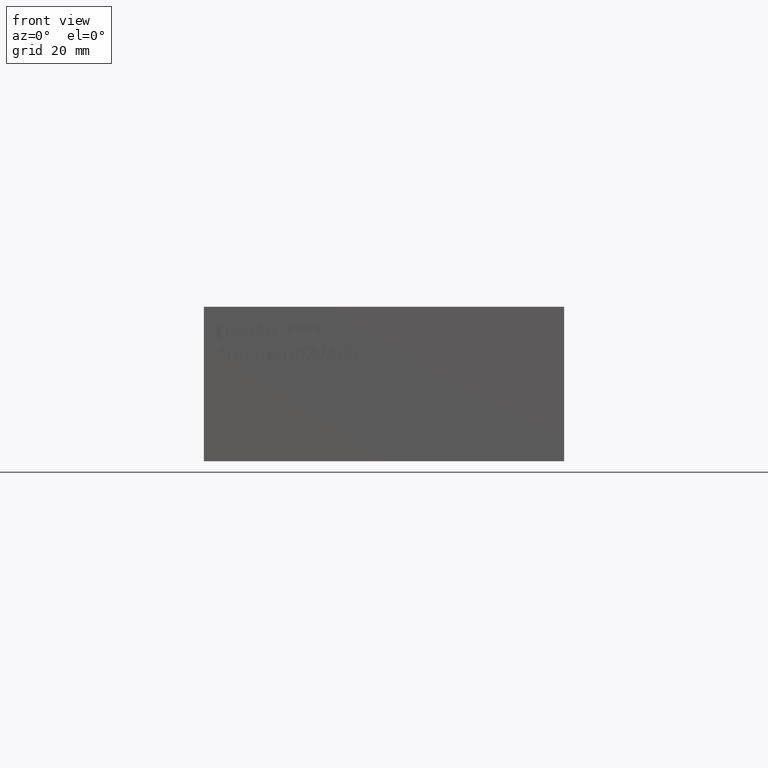
[diagram: clean part render]
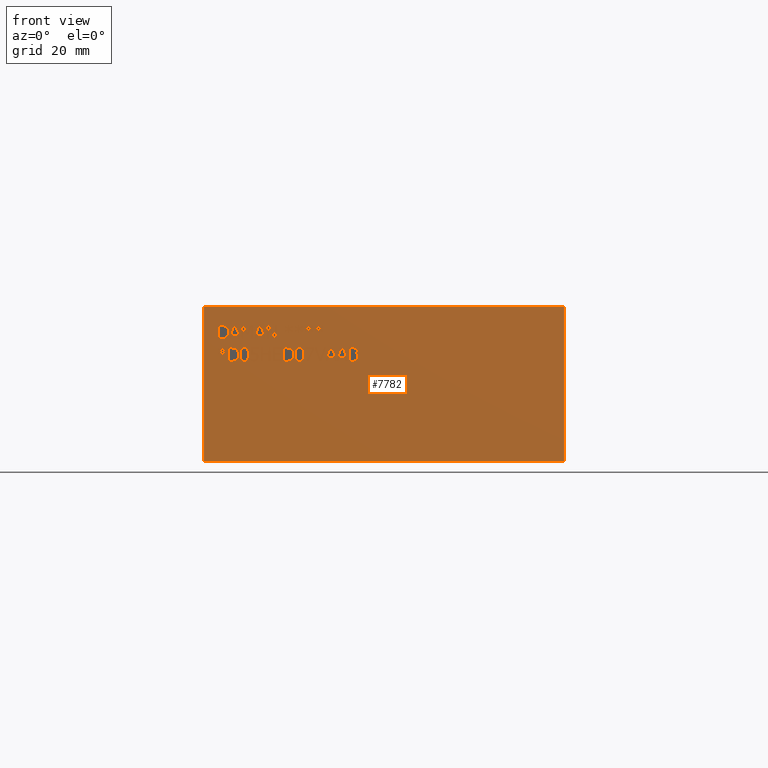
[diagram: same view with one face highlighted and labeled with its STEP entity id]
A machine part, front view. The second image highlights one B-rep face of the part: STEP entity #7782.
In plain terms, the highlighted planar face has unit normal (0, -1, 0).
Its self-contained STEP definition (entity closure, byte-faithful):
#174=B_SPLINE_CURVE_WITH_KNOTS('',2,(#10703,#10704,#10705,#10706),
 .UNSPECIFIED.,.F.,.F.,(3,1,3),(0.,1.,2.),.UNSPECIFIED.);
#176=B_SPLINE_CURVE_WITH_KNOTS('',2,(#10724,#10725,#10726,#10727),
 .UNSPECIFIED.,.F.,.F.,(3,1,3),(0.,1.,2.),.UNSPECIFIED.);
#178=B_SPLINE_CURVE_WITH_KNOTS('',2,(#10761,#10762,#10763,#10764),
 .UNSPECIFIED.,.F.,.F.,(3,1,3),(0.,1.,2.),.UNSPECIFIED.);
#180=B_SPLINE_CURVE_WITH_KNOTS('',2,(#10779,#10780,#10781,#10782),
 .UNSPECIFIED.,.F.,.F.,(3,1,3),(0.,1.,2.),.UNSPECIFIED.);
#182=B_SPLINE_CURVE_WITH_KNOTS('',2,(#11145,#11146,#11147,#11148),
 .UNSPECIFIED.,.F.,.F.,(3,1,3),(0.,1.,2.),.UNSPECIFIED.);
#183=B_SPLINE_CURVE_WITH_KNOTS('',2,(#11150,#11151,#11152,#11153),
 .UNSPECIFIED.,.F.,.F.,(3,1,3),(0.,1.,2.),.UNSPECIFIED.);
#184=B_SPLINE_CURVE_WITH_KNOTS('',2,(#11155,#11156,#11157,#11158),
 .UNSPECIFIED.,.F.,.F.,(3,1,3),(0.,1.,2.),.UNSPECIFIED.);
#185=B_SPLINE_CURVE_WITH_KNOTS('',2,(#11166,#11167,#11168,#11169),
 .UNSPECIFIED.,.F.,.F.,(3,1,3),(0.,1.,2.),.UNSPECIFIED.);
#186=B_SPLINE_CURVE_WITH_KNOTS('',2,(#11171,#11172,#11173,#11174),
 .UNSPECIFIED.,.F.,.F.,(3,1,3),(0.,1.,2.),.UNSPECIFIED.);
#187=B_SPLINE_CURVE_WITH_KNOTS('',2,(#11176,#11177,#11178,#11179),
 .UNSPECIFIED.,.F.,.F.,(3,1,3),(0.,1.,2.),.UNSPECIFIED.);
#188=B_SPLINE_CURVE_WITH_KNOTS('',2,(#11227,#11228,#11229,#11230),
 .UNSPECIFIED.,.F.,.F.,(3,1,3),(0.,1.,2.),.UNSPECIFIED.);
#189=B_SPLINE_CURVE_WITH_KNOTS('',2,(#11232,#11233,#11234,#11235),
 .UNSPECIFIED.,.F.,.F.,(3,1,3),(0.,1.,2.),.UNSPECIFIED.);
#190=B_SPLINE_CURVE_WITH_KNOTS('',2,(#11237,#11238,#11239,#11240),
 .UNSPECIFIED.,.F.,.F.,(3,1,3),(0.,1.,2.),.UNSPECIFIED.);
#191=B_SPLINE_CURVE_WITH_KNOTS('',2,(#11241,#11242,#11243,#11244),
 .UNSPECIFIED.,.F.,.F.,(3,1,3),(0.,1.,2.),.UNSPECIFIED.);
#192=B_SPLINE_CURVE_WITH_KNOTS('',2,(#11247,#11248,#11249,#11250),
 .UNSPECIFIED.,.F.,.F.,(3,1,3),(0.,1.,2.),.UNSPECIFIED.);
#193=B_SPLINE_CURVE_WITH_KNOTS('',2,(#11252,#11253,#11254,#11255),
 .UNSPECIFIED.,.F.,.F.,(3,1,3),(0.,1.,2.),.UNSPECIFIED.);
#194=B_SPLINE_CURVE_WITH_KNOTS('',2,(#11257,#11258,#11259,#11260),
 .UNSPECIFIED.,.F.,.F.,(3,1,3),(0.,1.,2.),.UNSPECIFIED.);
#195=B_SPLINE_CURVE_WITH_KNOTS('',2,(#11267,#11268,#11269,#11270),
 .UNSPECIFIED.,.F.,.F.,(3,1,3),(0.,1.,2.),.UNSPECIFIED.);
#196=B_SPLINE_CURVE_WITH_KNOTS('',2,(#11333,#11334,#11335,#11336),
 .UNSPECIFIED.,.F.,.F.,(3,1,3),(0.,1.,2.),.UNSPECIFIED.);
#197=B_SPLINE_CURVE_WITH_KNOTS('',2,(#11338,#11339,#11340,#11341),
 .UNSPECIFIED.,.F.,.F.,(3,1,3),(0.,1.,2.),.UNSPECIFIED.);
#198=B_SPLINE_CURVE_WITH_KNOTS('',2,(#11343,#11344,#11345,#11346),
 .UNSPECIFIED.,.F.,.F.,(3,1,3),(0.,1.,2.),.UNSPECIFIED.);
#199=B_SPLINE_CURVE_WITH_KNOTS('',2,(#11353,#11354,#11355,#11356),
 .UNSPECIFIED.,.F.,.F.,(3,1,3),(0.,1.,2.),.UNSPECIFIED.);
#200=B_SPLINE_CURVE_WITH_KNOTS('',2,(#11359,#11360,#11361,#11362),
 .UNSPECIFIED.,.F.,.F.,(3,1,3),(0.,1.,2.),.UNSPECIFIED.);
#201=B_SPLINE_CURVE_WITH_KNOTS('',2,(#11364,#11365,#11366,#11367),
 .UNSPECIFIED.,.F.,.F.,(3,1,3),(0.,1.,2.),.UNSPECIFIED.);
#202=B_SPLINE_CURVE_WITH_KNOTS('',2,(#11369,#11370,#11371,#11372),
 .UNSPECIFIED.,.F.,.F.,(3,1,3),(0.,1.,2.),.UNSPECIFIED.);
#203=B_SPLINE_CURVE_WITH_KNOTS('',2,(#11373,#11374,#11375,#11376),
 .UNSPECIFIED.,.F.,.F.,(3,1,3),(0.,1.,2.),.UNSPECIFIED.);
#204=B_SPLINE_CURVE_WITH_KNOTS('',2,(#11379,#11380,#11381,#11382),
 .UNSPECIFIED.,.F.,.F.,(3,1,3),(0.,1.,2.),.UNSPECIFIED.);
#205=B_SPLINE_CURVE_WITH_KNOTS('',2,(#11384,#11385,#11386,#11387),
 .UNSPECIFIED.,.F.,.F.,(3,1,3),(0.,1.,2.),.UNSPECIFIED.);
#206=B_SPLINE_CURVE_WITH_KNOTS('',2,(#11389,#11390,#11391,#11392),
 .UNSPECIFIED.,.F.,.F.,(3,1,3),(0.,1.,2.),.UNSPECIFIED.);
#207=B_SPLINE_CURVE_WITH_KNOTS('',2,(#11394,#11395,#11396,#11397),
 .UNSPECIFIED.,.F.,.F.,(3,1,3),(0.,1.,2.),.UNSPECIFIED.);
#208=B_SPLINE_CURVE_WITH_KNOTS('',2,(#11403,#11404,#11405,#11406),
 .UNSPECIFIED.,.F.,.F.,(3,1,3),(0.,1.,2.),.UNSPECIFIED.);
#209=B_SPLINE_CURVE_WITH_KNOTS('',2,(#11408,#11409,#11410,#11411),
 .UNSPECIFIED.,.F.,.F.,(3,1,3),(0.,1.,2.),.UNSPECIFIED.);
#210=B_SPLINE_CURVE_WITH_KNOTS('',2,(#11413,#11414,#11415,#11416),
 .UNSPECIFIED.,.F.,.F.,(3,1,3),(0.,1.,2.),.UNSPECIFIED.);
#211=B_SPLINE_CURVE_WITH_KNOTS('',2,(#11418,#11419,#11420,#11421),
 .UNSPECIFIED.,.F.,.F.,(3,1,3),(0.,1.,2.),.UNSPECIFIED.);
#212=B_SPLINE_CURVE_WITH_KNOTS('',2,(#11423,#11424,#11425,#11426),
 .UNSPECIFIED.,.F.,.F.,(3,1,3),(0.,1.,2.),.UNSPECIFIED.);
#213=B_SPLINE_CURVE_WITH_KNOTS('',2,(#11428,#11429,#11430,#11431),
 .UNSPECIFIED.,.F.,.F.,(3,1,3),(0.,1.,2.),.UNSPECIFIED.);
#214=B_SPLINE_CURVE_WITH_KNOTS('',2,(#11433,#11434,#11435,#11436),
 .UNSPECIFIED.,.F.,.F.,(3,1,3),(0.,1.,2.),.UNSPECIFIED.);
#215=B_SPLINE_CURVE_WITH_KNOTS('',2,(#11448,#11449,#11450,#11451),
 .UNSPECIFIED.,.F.,.F.,(3,1,3),(0.,1.,2.),.UNSPECIFIED.);
#216=B_SPLINE_CURVE_WITH_KNOTS('',2,(#11452,#11453,#11454,#11455),
 .UNSPECIFIED.,.F.,.F.,(3,1,3),(0.,1.,2.),.UNSPECIFIED.);
#394=FACE_BOUND('',#1041,.T.);
#395=FACE_BOUND('',#1042,.T.);
#396=FACE_BOUND('',#1043,.T.);
#397=FACE_BOUND('',#1044,.T.);
#398=FACE_BOUND('',#1045,.T.);
#399=FACE_BOUND('',#1046,.T.);
#400=FACE_BOUND('',#1047,.T.);
#401=FACE_BOUND('',#1048,.T.);
#402=FACE_BOUND('',#1049,.T.);
#403=FACE_BOUND('',#1050,.T.);
#404=FACE_BOUND('',#1051,.T.);
#405=FACE_BOUND('',#1052,.T.);
#406=FACE_BOUND('',#1053,.T.);
#407=FACE_BOUND('',#1054,.T.);
#408=FACE_BOUND('',#1055,.T.);
#409=FACE_BOUND('',#1056,.T.);
#410=FACE_BOUND('',#1057,.T.);
#411=FACE_BOUND('',#1058,.T.);
#412=FACE_BOUND('',#1059,.T.);
#413=FACE_BOUND('',#1060,.T.);
#414=FACE_BOUND('',#1061,.T.);
#613=FACE_OUTER_BOUND('',#1040,.T.);
#1040=EDGE_LOOP('',(#5534,#5535,#5536,#5537));
#1041=EDGE_LOOP('',(#5538,#5539,#5540,#5541,#5542,#5543,#5544,#5545,#5546,
#5547));
#1042=EDGE_LOOP('',(#5548,#5549,#5550,#5551,#5552,#5553,#5554,#5555,#5556,
#5557,#5558,#5559,#5560,#5561,#5562));
#1043=EDGE_LOOP('',(#5563,#5564,#5565,#5566,#5567,#5568,#5569));
#1044=EDGE_LOOP('',(#5570,#5571,#5572,#5573));
#1045=EDGE_LOOP('',(#5574,#5575,#5576,#5577,#5578,#5579,#5580));
#1046=EDGE_LOOP('',(#5581,#5582,#5583,#5584,#5585,#5586,#5587,#5588,#5589,
#5590,#5591,#5592));
#1047=EDGE_LOOP('',(#5593,#5594,#5595,#5596,#5597,#5598,#5599,#5600,#5601,
#5602,#5603,#5604,#5605,#5606,#5607,#5608,#5609,#5610));
#1048=EDGE_LOOP('',(#5611,#5612,#5613,#5614,#5615,#5616,#5617));
#1049=EDGE_LOOP('',(#5618,#5619,#5620,#5621));
#1050=EDGE_LOOP('',(#5622,#5623,#5624,#5625,#5626,#5627,#5628,#5629,#5630,
#5631,#5632,#5633,#5634,#5635,#5636,#5637,#5638,#5639,#5640,#5641));
#1051=EDGE_LOOP('',(#5642,#5643,#5644,#5645,#5646,#5647,#5648,#5649,#5650,
#5651,#5652,#5653));
#1052=EDGE_LOOP('',(#5654,#5655,#5656,#5657,#5658,#5659,#5660));
#1053=EDGE_LOOP('',(#5661,#5662,#5663,#5664,#5665,#5666,#5667,#5668,#5669,
#5670,#5671,#5672,#5673,#5674,#5675,#5676,#5677,#5678));
#1054=EDGE_LOOP('',(#5679,#5680,#5681,#5682,#5683,#5684,#5685,#5686,#5687,
#5688,#5689,#5690,#5691,#5692,#5693,#5694,#5695,#5696));
#1055=EDGE_LOOP('',(#5697,#5698,#5699,#5700,#5701,#5702,#5703,#5704,#5705,
#5706));
#1056=EDGE_LOOP('',(#5707,#5708,#5709,#5710,#5711,#5712,#5713,#5714));
#1057=EDGE_LOOP('',(#5715,#5716,#5717,#5718,#5719,#5720,#5721));
#1058=EDGE_LOOP('',(#5722,#5723,#5724,#5725,#5726,#5727,#5728,#5729));
#1059=EDGE_LOOP('',(#5730,#5731,#5732,#5733,#5734,#5735,#5736,#5737,#5738,
#5739,#5740,#5741,#5742));
#1060=EDGE_LOOP('',(#5743,#5744,#5745,#5746,#5747,#5748,#5749,#5750,#5751,
#5752,#5753,#5754,#5755,#5756,#5757,#5758,#5759,#5760));
#1061=EDGE_LOOP('',(#5761,#5762,#5763,#5764,#5765,#5766,#5767,#5768,#5769,
#5770,#5771,#5772,#5773,#5774,#5775,#5776,#5777,#5778));
#1403=LINE('',#10238,#2241);
#1407=LINE('',#10246,#2245);
#1410=LINE('',#10252,#2248);
#1413=LINE('',#10258,#2251);
#1416=LINE('',#10264,#2254);
#1419=LINE('',#10270,#2257);
#1422=LINE('',#10276,#2260);
#1425=LINE('',#10282,#2263);
#1428=LINE('',#10288,#2266);
#1431=LINE('',#10294,#2269);
#1434=LINE('',#10300,#2272);
#1437=LINE('',#10306,#2275);
#1440=LINE('',#10312,#2278);
#1443=LINE('',#10318,#2281);
#1446=LINE('',#10324,#2284);
#1449=LINE('',#10330,#2287);
#1452=LINE('',#10336,#2290);
#1455=LINE('',#10341,#2293);
#1457=LINE('',#10347,#2295);
#1461=LINE('',#10355,#2299);
#1464=LINE('',#10361,#2302);
#1467=LINE('',#10367,#2305);
#1470=LINE('',#10373,#2308);
#1473=LINE('',#10379,#2311);
#1476=LINE('',#10385,#2314);
#1479=LINE('',#10391,#2317);
#1482=LINE('',#10397,#2320);
#1485=LINE('',#10403,#2323);
#1488=LINE('',#10409,#2326);
#1491=LINE('',#10415,#2329);
#1494=LINE('',#10421,#2332);
#1497=LINE('',#10427,#2335);
#1500=LINE('',#10433,#2338);
#1503=LINE('',#10439,#2341);
#1506=LINE('',#10445,#2344);
#1509=LINE('',#10450,#2347);
#1511=LINE('',#10456,#2349);
#1515=LINE('',#10464,#2353);
#1518=LINE('',#10470,#2356);
#1521=LINE('',#10476,#2359);
#1524=LINE('',#10482,#2362);
#1527=LINE('',#10488,#2365);
#1530=LINE('',#10494,#2368);
#1533=LINE('',#10500,#2371);
#1536=LINE('',#10506,#2374);
#1539=LINE('',#10512,#2377);
#1542=LINE('',#10518,#2380);
#1545=LINE('',#10524,#2383);
#1548=LINE('',#10529,#2386);
#1559=LINE('',#10553,#2397);
#1563=LINE('',#10561,#2401);
#1566=LINE('',#10567,#2404);
#1569=LINE('',#10573,#2407);
#1572=LINE('',#10579,#2410);
#1575=LINE('',#10585,#2413);
#1578=LINE('',#10591,#2416);
#1581=LINE('',#10596,#2419);
#1599=LINE('',#10736,#2437);
#1602=LINE('',#10742,#2440);
#1605=LINE('',#10748,#2443);
#1618=LINE('',#10809,#2456);
#1622=LINE('',#10817,#2460);
#1625=LINE('',#10823,#2463);
#1628=LINE('',#10829,#2466);
#1631=LINE('',#10835,#2469);
#1634=LINE('',#10841,#2472);
#1637=LINE('',#10847,#2475);
#1640=LINE('',#10852,#2478);
#1642=LINE('',#10858,#2480);
#1646=LINE('',#10866,#2484);
#1649=LINE('',#10872,#2487);
#1652=LINE('',#10878,#2490);
#1655=LINE('',#10884,#2493);
#1658=LINE('',#10890,#2496);
#1661=LINE('',#10896,#2499);
#1664=LINE('',#10902,#2502);
#1667=LINE('',#10908,#2505);
#1670=LINE('',#10913,#2508);
#1672=LINE('',#10919,#2510);
#1676=LINE('',#10927,#2514);
#1679=LINE('',#10933,#2517);
#1682=LINE('',#10939,#2520);
#1685=LINE('',#10945,#2523);
#1688=LINE('',#10951,#2526);
#1691=LINE('',#10957,#2529);
#1694=LINE('',#10963,#2532);
#1697=LINE('',#10969,#2535);
#1700=LINE('',#10975,#2538);
#1703=LINE('',#10981,#2541);
#1706=LINE('',#10987,#2544);
#1709=LINE('',#10993,#2547);
#1712=LINE('',#10999,#2550);
#1715=LINE('',#11005,#2553);
#1718=LINE('',#11011,#2556);
#1721=LINE('',#11017,#2559);
#1724=LINE('',#11022,#2562);
#1726=LINE('',#11028,#2564);
#1730=LINE('',#11036,#2568);
#1733=LINE('',#11042,#2571);
#1736=LINE('',#11048,#2574);
#1739=LINE('',#11054,#2577);
#1742=LINE('',#11060,#2580);
#1745=LINE('',#11066,#2583);
#1748=LINE('',#11072,#2586);
#1751=LINE('',#11078,#2589);
#1754=LINE('',#11084,#2592);
#1757=LINE('',#11090,#2595);
#1760=LINE('',#11096,#2598);
#1763=LINE('',#11102,#2601);
#1766=LINE('',#11108,#2604);
#1769=LINE('',#11114,#2607);
#1772=LINE('',#11120,#2610);
#1775=LINE('',#11126,#2613);
#1778=LINE('',#11131,#2616);
#1780=LINE('',#11137,#2618);
#1781=LINE('',#11139,#2619);
#1782=LINE('',#11141,#2620);
#1783=LINE('',#11142,#2621);
#1784=LINE('',#11160,#2622);
#1785=LINE('',#11162,#2623);
#1786=LINE('',#11164,#2624);
#1787=LINE('',#11180,#2625);
#1788=LINE('',#11183,#2626);
#1789=LINE('',#11185,#2627);
#1790=LINE('',#11187,#2628);
#1791=LINE('',#11189,#2629);
#1792=LINE('',#11191,#2630);
#1793=LINE('',#11193,#2631);
#1794=LINE('',#11195,#2632);
#1795=LINE('',#11197,#2633);
#1796=LINE('',#11199,#2634);
#1797=LINE('',#11201,#2635);
#1798=LINE('',#11203,#2636);
#1799=LINE('',#11205,#2637);
#1800=LINE('',#11207,#2638);
#1801=LINE('',#11209,#2639);
#1802=LINE('',#11210,#2640);
#1803=LINE('',#11213,#2641);
#1804=LINE('',#11215,#2642);
#1805=LINE('',#11217,#2643);
#1806=LINE('',#11219,#2644);
#1807=LINE('',#11221,#2645);
#1808=LINE('',#11223,#2646);
#1809=LINE('',#11224,#2647);
#1810=LINE('',#11262,#2648);
#1811=LINE('',#11264,#2649);
#1812=LINE('',#11266,#2650);
#1813=LINE('',#11273,#2651);
#1814=LINE('',#11275,#2652);
#1815=LINE('',#11277,#2653);
#1816=LINE('',#11279,#2654);
#1817=LINE('',#11281,#2655);
#1818=LINE('',#11283,#2656);
#1819=LINE('',#11285,#2657);
#1820=LINE('',#11287,#2658);
#1821=LINE('',#11289,#2659);
#1822=LINE('',#11291,#2660);
#1823=LINE('',#11293,#2661);
#1824=LINE('',#11294,#2662);
#1825=LINE('',#11297,#2663);
#1826=LINE('',#11299,#2664);
#1827=LINE('',#11301,#2665);
#1828=LINE('',#11303,#2666);
#1829=LINE('',#11305,#2667);
#1830=LINE('',#11307,#2668);
#1831=LINE('',#11309,#2669);
#1832=LINE('',#11311,#2670);
#1833=LINE('',#11313,#2671);
#1834=LINE('',#11315,#2672);
#1835=LINE('',#11317,#2673);
#1836=LINE('',#11319,#2674);
#1837=LINE('',#11321,#2675);
#1838=LINE('',#11323,#2676);
#1839=LINE('',#11325,#2677);
#1840=LINE('',#11327,#2678);
#1841=LINE('',#11329,#2679);
#1842=LINE('',#11330,#2680);
#1843=LINE('',#11348,#2681);
#1844=LINE('',#11350,#2682);
#1845=LINE('',#11352,#2683);
#1846=LINE('',#11399,#2684);
#1847=LINE('',#11401,#2685);
#1848=LINE('',#11438,#2686);
#1849=LINE('',#11440,#2687);
#1850=LINE('',#11442,#2688);
#1851=LINE('',#11444,#2689);
#1852=LINE('',#11446,#2690);
#1853=LINE('',#11458,#2691);
#1854=LINE('',#11460,#2692);
#1855=LINE('',#11462,#2693);
#1856=LINE('',#11464,#2694);
#1857=LINE('',#11466,#2695);
#1858=LINE('',#11468,#2696);
#1859=LINE('',#11470,#2697);
#1860=LINE('',#11472,#2698);
#1861=LINE('',#11474,#2699);
#1862=LINE('',#11476,#2700);
#1863=LINE('',#11478,#2701);
#1864=LINE('',#11479,#2702);
#1865=LINE('',#11482,#2703);
#1866=LINE('',#11484,#2704);
#1867=LINE('',#11486,#2705);
#1868=LINE('',#11488,#2706);
#1869=LINE('',#11490,#2707);
#1870=LINE('',#11492,#2708);
#1871=LINE('',#11493,#2709);
#2241=VECTOR('',#8524,10.);
#2245=VECTOR('',#8530,10.);
#2248=VECTOR('',#8535,10.);
#2251=VECTOR('',#8540,10.);
#2254=VECTOR('',#8545,10.);
#2257=VECTOR('',#8550,10.);
#2260=VECTOR('',#8555,10.);
#2263=VECTOR('',#8560,10.);
#2266=VECTOR('',#8565,10.);
#2269=VECTOR('',#8570,10.);
#2272=VECTOR('',#8575,10.);
#2275=VECTOR('',#8580,10.);
#2278=VECTOR('',#8585,10.);
#2281=VECTOR('',#8590,10.);
#2284=VECTOR('',#8595,10.);
#2287=VECTOR('',#8600,10.);
#2290=VECTOR('',#8605,10.);
#2293=VECTOR('',#8610,10.);
#2295=VECTOR('',#8616,10.);
#2299=VECTOR('',#8622,10.);
#2302=VECTOR('',#8627,10.);
#2305=VECTOR('',#8632,10.);
#2308=VECTOR('',#8637,10.);
#2311=VECTOR('',#8642,10.);
#2314=VECTOR('',#8647,10.);
#2317=VECTOR('',#8652,10.);
#2320=VECTOR('',#8657,10.);
#2323=VECTOR('',#8662,10.);
#2326=VECTOR('',#8667,10.);
#2329=VECTOR('',#8672,10.);
#2332=VECTOR('',#8677,10.);
#2335=VECTOR('',#8682,10.);
#2338=VECTOR('',#8687,10.);
#2341=VECTOR('',#8692,10.);
#2344=VECTOR('',#8697,10.);
#2347=VECTOR('',#8702,10.);
#2349=VECTOR('',#8708,10.);
#2353=VECTOR('',#8714,10.);
#2356=VECTOR('',#8719,10.);
#2359=VECTOR('',#8724,10.);
#2362=VECTOR('',#8729,10.);
#2365=VECTOR('',#8734,10.);
#2368=VECTOR('',#8739,10.);
#2371=VECTOR('',#8744,10.);
#2374=VECTOR('',#8749,10.);
#2377=VECTOR('',#8754,10.);
#2380=VECTOR('',#8759,10.);
#2383=VECTOR('',#8764,10.);
#2386=VECTOR('',#8769,10.);
#2397=VECTOR('',#8790,10.);
#2401=VECTOR('',#8796,10.);
#2404=VECTOR('',#8801,10.);
#2407=VECTOR('',#8806,10.);
#2410=VECTOR('',#8811,10.);
#2413=VECTOR('',#8816,10.);
#2416=VECTOR('',#8821,10.);
#2419=VECTOR('',#8826,10.);
#2437=VECTOR('',#8854,10.);
#2440=VECTOR('',#8859,10.);
#2443=VECTOR('',#8864,10.);
#2456=VECTOR('',#8887,10.);
#2460=VECTOR('',#8893,10.);
#2463=VECTOR('',#8898,10.);
#2466=VECTOR('',#8903,10.);
#2469=VECTOR('',#8908,10.);
#2472=VECTOR('',#8913,10.);
#2475=VECTOR('',#8918,10.);
#2478=VECTOR('',#8923,10.);
#2480=VECTOR('',#8929,10.);
#2484=VECTOR('',#8935,10.);
#2487=VECTOR('',#8940,10.);
#2490=VECTOR('',#8945,10.);
#2493=VECTOR('',#8950,10.);
#2496=VECTOR('',#8955,10.);
#2499=VECTOR('',#8960,10.);
#2502=VECTOR('',#8965,10.);
#2505=VECTOR('',#8970,10.);
#2508=VECTOR('',#8975,10.);
#2510=VECTOR('',#8981,10.);
#2514=VECTOR('',#8987,10.);
#2517=VECTOR('',#8992,10.);
#2520=VECTOR('',#8997,10.);
#2523=VECTOR('',#9002,10.);
#2526=VECTOR('',#9007,10.);
#2529=VECTOR('',#9012,10.);
#2532=VECTOR('',#9017,10.);
#2535=VECTOR('',#9022,10.);
#2538=VECTOR('',#9027,10.);
#2541=VECTOR('',#9032,10.);
#2544=VECTOR('',#9037,10.);
#2547=VECTOR('',#9042,10.);
#2550=VECTOR('',#9047,10.);
#2553=VECTOR('',#9052,10.);
#2556=VECTOR('',#9057,10.);
#2559=VECTOR('',#9062,10.);
#2562=VECTOR('',#9067,10.);
#2564=VECTOR('',#9073,10.);
#2568=VECTOR('',#9079,10.);
#2571=VECTOR('',#9084,10.);
#2574=VECTOR('',#9089,10.);
#2577=VECTOR('',#9094,10.);
#2580=VECTOR('',#9099,10.);
#2583=VECTOR('',#9104,10.);
#2586=VECTOR('',#9109,10.);
#2589=VECTOR('',#9114,10.);
#2592=VECTOR('',#9119,10.);
#2595=VECTOR('',#9124,10.);
#2598=VECTOR('',#9129,10.);
#2601=VECTOR('',#9134,10.);
#2604=VECTOR('',#9139,10.);
#2607=VECTOR('',#9144,10.);
#2610=VECTOR('',#9149,10.);
#2613=VECTOR('',#9154,10.);
#2616=VECTOR('',#9159,10.);
#2618=VECTOR('',#9165,10.);
#2619=VECTOR('',#9166,10.);
#2620=VECTOR('',#9167,10.);
#2621=VECTOR('',#9168,10.);
#2622=VECTOR('',#9169,10.);
#2623=VECTOR('',#9170,10.);
#2624=VECTOR('',#9171,10.);
#2625=VECTOR('',#9172,10.);
#2626=VECTOR('',#9173,10.);
#2627=VECTOR('',#9174,10.);
#2628=VECTOR('',#9175,10.);
#2629=VECTOR('',#9176,10.);
#2630=VECTOR('',#9177,10.);
#2631=VECTOR('',#9178,10.);
#2632=VECTOR('',#9179,10.);
#2633=VECTOR('',#9180,10.);
#2634=VECTOR('',#9181,10.);
#2635=VECTOR('',#9182,10.);
#2636=VECTOR('',#9183,10.);
#2637=VECTOR('',#9184,10.);
#2638=VECTOR('',#9185,10.);
#2639=VECTOR('',#9186,10.);
#2640=VECTOR('',#9187,10.);
#2641=VECTOR('',#9188,10.);
#2642=VECTOR('',#9189,10.);
#2643=VECTOR('',#9190,10.);
#2644=VECTOR('',#9191,10.);
#2645=VECTOR('',#9192,10.);
#2646=VECTOR('',#9193,10.);
#2647=VECTOR('',#9194,10.);
#2648=VECTOR('',#9195,10.);
#2649=VECTOR('',#9196,10.);
#2650=VECTOR('',#9197,10.);
#2651=VECTOR('',#9198,10.);
#2652=VECTOR('',#9199,10.);
#2653=VECTOR('',#9200,10.);
#2654=VECTOR('',#9201,10.);
#2655=VECTOR('',#9202,10.);
#2656=VECTOR('',#9203,10.);
#2657=VECTOR('',#9204,10.);
#2658=VECTOR('',#9205,10.);
#2659=VECTOR('',#9206,10.);
#2660=VECTOR('',#9207,10.);
#2661=VECTOR('',#9208,10.);
#2662=VECTOR('',#9209,10.);
#2663=VECTOR('',#9210,10.);
#2664=VECTOR('',#9211,10.);
#2665=VECTOR('',#9212,10.);
#2666=VECTOR('',#9213,10.);
#2667=VECTOR('',#9214,10.);
#2668=VECTOR('',#9215,10.);
#2669=VECTOR('',#9216,10.);
#2670=VECTOR('',#9217,10.);
#2671=VECTOR('',#9218,10.);
#2672=VECTOR('',#9219,10.);
#2673=VECTOR('',#9220,10.);
#2674=VECTOR('',#9221,10.);
#2675=VECTOR('',#9222,10.);
#2676=VECTOR('',#9223,10.);
#2677=VECTOR('',#9224,10.);
#2678=VECTOR('',#9225,10.);
#2679=VECTOR('',#9226,10.);
#2680=VECTOR('',#9227,10.);
#2681=VECTOR('',#9228,10.);
#2682=VECTOR('',#9229,10.);
#2683=VECTOR('',#9230,10.);
#2684=VECTOR('',#9231,10.);
#2685=VECTOR('',#9232,10.);
#2686=VECTOR('',#9233,10.);
#2687=VECTOR('',#9234,10.);
#2688=VECTOR('',#9235,10.);
#2689=VECTOR('',#9236,10.);
#2690=VECTOR('',#9237,10.);
#2691=VECTOR('',#9238,10.);
#2692=VECTOR('',#9239,10.);
#2693=VECTOR('',#9240,10.);
#2694=VECTOR('',#9241,10.);
#2695=VECTOR('',#9242,10.);
#2696=VECTOR('',#9243,10.);
#2697=VECTOR('',#9244,10.);
#2698=VECTOR('',#9245,10.);
#2699=VECTOR('',#9246,10.);
#2700=VECTOR('',#9247,10.);
#2701=VECTOR('',#9248,10.);
#2702=VECTOR('',#9249,10.);
#2703=VECTOR('',#9250,10.);
#2704=VECTOR('',#9251,10.);
#2705=VECTOR('',#9252,10.);
#2706=VECTOR('',#9253,10.);
#2707=VECTOR('',#9254,10.);
#2708=VECTOR('',#9255,10.);
#2709=VECTOR('',#9256,10.);
#3079=VERTEX_POINT('',#10236);
#3080=VERTEX_POINT('',#10237);
#3083=VERTEX_POINT('',#10245);
#3085=VERTEX_POINT('',#10251);
#3087=VERTEX_POINT('',#10257);
#3089=VERTEX_POINT('',#10263);
#3091=VERTEX_POINT('',#10269);
#3093=VERTEX_POINT('',#10275);
#3095=VERTEX_POINT('',#10281);
#3097=VERTEX_POINT('',#10287);
#3099=VERTEX_POINT('',#10293);
#3101=VERTEX_POINT('',#10299);
#3103=VERTEX_POINT('',#10305);
#3105=VERTEX_POINT('',#10311);
#3107=VERTEX_POINT('',#10317);
#3109=VERTEX_POINT('',#10323);
#3111=VERTEX_POINT('',#10329);
#3113=VERTEX_POINT('',#10335);
#3115=VERTEX_POINT('',#10345);
#3116=VERTEX_POINT('',#10346);
#3119=VERTEX_POINT('',#10354);
#3121=VERTEX_POINT('',#10360);
#3123=VERTEX_POINT('',#10366);
#3125=VERTEX_POINT('',#10372);
#3127=VERTEX_POINT('',#10378);
#3129=VERTEX_POINT('',#10384);
#3131=VERTEX_POINT('',#10390);
#3133=VERTEX_POINT('',#10396);
#3135=VERTEX_POINT('',#10402);
#3137=VERTEX_POINT('',#10408);
#3139=VERTEX_POINT('',#10414);
#3141=VERTEX_POINT('',#10420);
#3143=VERTEX_POINT('',#10426);
#3145=VERTEX_POINT('',#10432);
#3147=VERTEX_POINT('',#10438);
#3149=VERTEX_POINT('',#10444);
#3151=VERTEX_POINT('',#10454);
#3152=VERTEX_POINT('',#10455);
#3155=VERTEX_POINT('',#10463);
#3157=VERTEX_POINT('',#10469);
#3159=VERTEX_POINT('',#10475);
#3161=VERTEX_POINT('',#10481);
#3163=VERTEX_POINT('',#10487);
#3165=VERTEX_POINT('',#10493);
#3167=VERTEX_POINT('',#10499);
#3169=VERTEX_POINT('',#10505);
#3171=VERTEX_POINT('',#10511);
#3173=VERTEX_POINT('',#10517);
#3175=VERTEX_POINT('',#10523);
#3183=VERTEX_POINT('',#10551);
#3184=VERTEX_POINT('',#10552);
#3187=VERTEX_POINT('',#10560);
#3189=VERTEX_POINT('',#10566);
#3191=VERTEX_POINT('',#10572);
#3193=VERTEX_POINT('',#10578);
#3195=VERTEX_POINT('',#10584);
#3197=VERTEX_POINT('',#10590);
#3213=VERTEX_POINT('',#10701);
#3214=VERTEX_POINT('',#10702);
#3217=VERTEX_POINT('',#10723);
#3219=VERTEX_POINT('',#10735);
#3221=VERTEX_POINT('',#10741);
#3223=VERTEX_POINT('',#10747);
#3225=VERTEX_POINT('',#10760);
#3233=VERTEX_POINT('',#10807);
#3234=VERTEX_POINT('',#10808);
#3237=VERTEX_POINT('',#10816);
#3239=VERTEX_POINT('',#10822);
#3241=VERTEX_POINT('',#10828);
#3243=VERTEX_POINT('',#10834);
#3245=VERTEX_POINT('',#10840);
#3247=VERTEX_POINT('',#10846);
#3249=VERTEX_POINT('',#10856);
#3250=VERTEX_POINT('',#10857);
#3253=VERTEX_POINT('',#10865);
#3255=VERTEX_POINT('',#10871);
#3257=VERTEX_POINT('',#10877);
#3259=VERTEX_POINT('',#10883);
#3261=VERTEX_POINT('',#10889);
#3263=VERTEX_POINT('',#10895);
#3265=VERTEX_POINT('',#10901);
#3267=VERTEX_POINT('',#10907);
#3269=VERTEX_POINT('',#10917);
#3270=VERTEX_POINT('',#10918);
#3273=VERTEX_POINT('',#10926);
#3275=VERTEX_POINT('',#10932);
#3277=VERTEX_POINT('',#10938);
#3279=VERTEX_POINT('',#10944);
#3281=VERTEX_POINT('',#10950);
#3283=VERTEX_POINT('',#10956);
#3285=VERTEX_POINT('',#10962);
#3287=VERTEX_POINT('',#10968);
#3289=VERTEX_POINT('',#10974);
#3291=VERTEX_POINT('',#10980);
#3293=VERTEX_POINT('',#10986);
#3295=VERTEX_POINT('',#10992);
#3297=VERTEX_POINT('',#10998);
#3299=VERTEX_POINT('',#11004);
#3301=VERTEX_POINT('',#11010);
#3303=VERTEX_POINT('',#11016);
#3305=VERTEX_POINT('',#11026);
#3306=VERTEX_POINT('',#11027);
#3309=VERTEX_POINT('',#11035);
#3311=VERTEX_POINT('',#11041);
#3313=VERTEX_POINT('',#11047);
#3315=VERTEX_POINT('',#11053);
#3317=VERTEX_POINT('',#11059);
#3319=VERTEX_POINT('',#11065);
#3321=VERTEX_POINT('',#11071);
#3323=VERTEX_POINT('',#11077);
#3325=VERTEX_POINT('',#11083);
#3327=VERTEX_POINT('',#11089);
#3329=VERTEX_POINT('',#11095);
#3331=VERTEX_POINT('',#11101);
#3333=VERTEX_POINT('',#11107);
#3335=VERTEX_POINT('',#11113);
#3337=VERTEX_POINT('',#11119);
#3339=VERTEX_POINT('',#11125);
#3341=VERTEX_POINT('',#11135);
#3342=VERTEX_POINT('',#11136);
#3343=VERTEX_POINT('',#11138);
#3344=VERTEX_POINT('',#11140);
#3345=VERTEX_POINT('',#11143);
#3346=VERTEX_POINT('',#11144);
#3347=VERTEX_POINT('',#11149);
#3348=VERTEX_POINT('',#11154);
#3349=VERTEX_POINT('',#11159);
#3350=VERTEX_POINT('',#11161);
#3351=VERTEX_POINT('',#11163);
#3352=VERTEX_POINT('',#11165);
#3353=VERTEX_POINT('',#11170);
#3354=VERTEX_POINT('',#11175);
#3355=VERTEX_POINT('',#11181);
#3356=VERTEX_POINT('',#11182);
#3357=VERTEX_POINT('',#11184);
#3358=VERTEX_POINT('',#11186);
#3359=VERTEX_POINT('',#11188);
#3360=VERTEX_POINT('',#11190);
#3361=VERTEX_POINT('',#11192);
#3362=VERTEX_POINT('',#11194);
#3363=VERTEX_POINT('',#11196);
#3364=VERTEX_POINT('',#11198);
#3365=VERTEX_POINT('',#11200);
#3366=VERTEX_POINT('',#11202);
#3367=VERTEX_POINT('',#11204);
#3368=VERTEX_POINT('',#11206);
#3369=VERTEX_POINT('',#11208);
#3370=VERTEX_POINT('',#11211);
#3371=VERTEX_POINT('',#11212);
#3372=VERTEX_POINT('',#11214);
#3373=VERTEX_POINT('',#11216);
#3374=VERTEX_POINT('',#11218);
#3375=VERTEX_POINT('',#11220);
#3376=VERTEX_POINT('',#11222);
#3377=VERTEX_POINT('',#11225);
#3378=VERTEX_POINT('',#11226);
#3379=VERTEX_POINT('',#11231);
#3380=VERTEX_POINT('',#11236);
#3381=VERTEX_POINT('',#11245);
#3382=VERTEX_POINT('',#11246);
#3383=VERTEX_POINT('',#11251);
#3384=VERTEX_POINT('',#11256);
#3385=VERTEX_POINT('',#11261);
#3386=VERTEX_POINT('',#11263);
#3387=VERTEX_POINT('',#11265);
#3388=VERTEX_POINT('',#11271);
#3389=VERTEX_POINT('',#11272);
#3390=VERTEX_POINT('',#11274);
#3391=VERTEX_POINT('',#11276);
#3392=VERTEX_POINT('',#11278);
#3393=VERTEX_POINT('',#11280);
#3394=VERTEX_POINT('',#11282);
#3395=VERTEX_POINT('',#11284);
#3396=VERTEX_POINT('',#11286);
#3397=VERTEX_POINT('',#11288);
#3398=VERTEX_POINT('',#11290);
#3399=VERTEX_POINT('',#11292);
#3400=VERTEX_POINT('',#11295);
#3401=VERTEX_POINT('',#11296);
#3402=VERTEX_POINT('',#11298);
#3403=VERTEX_POINT('',#11300);
#3404=VERTEX_POINT('',#11302);
#3405=VERTEX_POINT('',#11304);
#3406=VERTEX_POINT('',#11306);
#3407=VERTEX_POINT('',#11308);
#3408=VERTEX_POINT('',#11310);
#3409=VERTEX_POINT('',#11312);
#3410=VERTEX_POINT('',#11314);
#3411=VERTEX_POINT('',#11316);
#3412=VERTEX_POINT('',#11318);
#3413=VERTEX_POINT('',#11320);
#3414=VERTEX_POINT('',#11322);
#3415=VERTEX_POINT('',#11324);
#3416=VERTEX_POINT('',#11326);
#3417=VERTEX_POINT('',#11328);
#3418=VERTEX_POINT('',#11331);
#3419=VERTEX_POINT('',#11332);
#3420=VERTEX_POINT('',#11337);
#3421=VERTEX_POINT('',#11342);
#3422=VERTEX_POINT('',#11347);
#3423=VERTEX_POINT('',#11349);
#3424=VERTEX_POINT('',#11351);
#3425=VERTEX_POINT('',#11357);
#3426=VERTEX_POINT('',#11358);
#3427=VERTEX_POINT('',#11363);
#3428=VERTEX_POINT('',#11368);
#3429=VERTEX_POINT('',#11377);
#3430=VERTEX_POINT('',#11378);
#3431=VERTEX_POINT('',#11383);
#3432=VERTEX_POINT('',#11388);
#3433=VERTEX_POINT('',#11393);
#3434=VERTEX_POINT('',#11398);
#3435=VERTEX_POINT('',#11400);
#3436=VERTEX_POINT('',#11402);
#3437=VERTEX_POINT('',#11407);
#3438=VERTEX_POINT('',#11412);
#3439=VERTEX_POINT('',#11417);
#3440=VERTEX_POINT('',#11422);
#3441=VERTEX_POINT('',#11427);
#3442=VERTEX_POINT('',#11432);
#3443=VERTEX_POINT('',#11437);
#3444=VERTEX_POINT('',#11439);
#3445=VERTEX_POINT('',#11441);
#3446=VERTEX_POINT('',#11443);
#3447=VERTEX_POINT('',#11445);
#3448=VERTEX_POINT('',#11447);
#3449=VERTEX_POINT('',#11456);
#3450=VERTEX_POINT('',#11457);
#3451=VERTEX_POINT('',#11459);
#3452=VERTEX_POINT('',#11461);
#3453=VERTEX_POINT('',#11463);
#3454=VERTEX_POINT('',#11465);
#3455=VERTEX_POINT('',#11467);
#3456=VERTEX_POINT('',#11469);
#3457=VERTEX_POINT('',#11471);
#3458=VERTEX_POINT('',#11473);
#3459=VERTEX_POINT('',#11475);
#3460=VERTEX_POINT('',#11477);
#3461=VERTEX_POINT('',#11480);
#3462=VERTEX_POINT('',#11481);
#3463=VERTEX_POINT('',#11483);
#3464=VERTEX_POINT('',#11485);
#3465=VERTEX_POINT('',#11487);
#3466=VERTEX_POINT('',#11489);
#3467=VERTEX_POINT('',#11491);
#3803=EDGE_CURVE('',#3079,#3080,#1403,.T.);
#3807=EDGE_CURVE('',#3083,#3079,#1407,.T.);
#3810=EDGE_CURVE('',#3085,#3083,#1410,.T.);
#3813=EDGE_CURVE('',#3087,#3085,#1413,.T.);
#3816=EDGE_CURVE('',#3089,#3087,#1416,.T.);
#3819=EDGE_CURVE('',#3091,#3089,#1419,.T.);
#3822=EDGE_CURVE('',#3093,#3091,#1422,.T.);
#3825=EDGE_CURVE('',#3095,#3093,#1425,.T.);
#3828=EDGE_CURVE('',#3097,#3095,#1428,.T.);
#3831=EDGE_CURVE('',#3099,#3097,#1431,.T.);
#3834=EDGE_CURVE('',#3101,#3099,#1434,.T.);
#3837=EDGE_CURVE('',#3103,#3101,#1437,.T.);
#3840=EDGE_CURVE('',#3105,#3103,#1440,.T.);
#3843=EDGE_CURVE('',#3107,#3105,#1443,.T.);
#3846=EDGE_CURVE('',#3109,#3107,#1446,.T.);
#3849=EDGE_CURVE('',#3111,#3109,#1449,.T.);
#3852=EDGE_CURVE('',#3113,#3111,#1452,.T.);
#3855=EDGE_CURVE('',#3080,#3113,#1455,.T.);
#3857=EDGE_CURVE('',#3115,#3116,#1457,.T.);
#3861=EDGE_CURVE('',#3119,#3115,#1461,.T.);
#3864=EDGE_CURVE('',#3121,#3119,#1464,.T.);
#3867=EDGE_CURVE('',#3123,#3121,#1467,.T.);
#3870=EDGE_CURVE('',#3125,#3123,#1470,.T.);
#3873=EDGE_CURVE('',#3127,#3125,#1473,.T.);
#3876=EDGE_CURVE('',#3129,#3127,#1476,.T.);
#3879=EDGE_CURVE('',#3131,#3129,#1479,.T.);
#3882=EDGE_CURVE('',#3133,#3131,#1482,.T.);
#3885=EDGE_CURVE('',#3135,#3133,#1485,.T.);
#3888=EDGE_CURVE('',#3137,#3135,#1488,.T.);
#3891=EDGE_CURVE('',#3139,#3137,#1491,.T.);
#3894=EDGE_CURVE('',#3141,#3139,#1494,.T.);
#3897=EDGE_CURVE('',#3143,#3141,#1497,.T.);
#3900=EDGE_CURVE('',#3145,#3143,#1500,.T.);
#3903=EDGE_CURVE('',#3147,#3145,#1503,.T.);
#3906=EDGE_CURVE('',#3149,#3147,#1506,.T.);
#3909=EDGE_CURVE('',#3116,#3149,#1509,.T.);
#3911=EDGE_CURVE('',#3151,#3152,#1511,.T.);
#3915=EDGE_CURVE('',#3155,#3151,#1515,.T.);
#3918=EDGE_CURVE('',#3157,#3155,#1518,.T.);
#3921=EDGE_CURVE('',#3159,#3157,#1521,.T.);
#3924=EDGE_CURVE('',#3161,#3159,#1524,.T.);
#3927=EDGE_CURVE('',#3163,#3161,#1527,.T.);
#3930=EDGE_CURVE('',#3165,#3163,#1530,.T.);
#3933=EDGE_CURVE('',#3167,#3165,#1533,.T.);
#3936=EDGE_CURVE('',#3169,#3167,#1536,.T.);
#3939=EDGE_CURVE('',#3171,#3169,#1539,.T.);
#3942=EDGE_CURVE('',#3173,#3171,#1542,.T.);
#3945=EDGE_CURVE('',#3175,#3173,#1545,.T.);
#3948=EDGE_CURVE('',#3152,#3175,#1548,.T.);
#3959=EDGE_CURVE('',#3183,#3184,#1559,.T.);
#3963=EDGE_CURVE('',#3187,#3183,#1563,.T.);
#3966=EDGE_CURVE('',#3189,#3187,#1566,.T.);
#3969=EDGE_CURVE('',#3191,#3189,#1569,.T.);
#3972=EDGE_CURVE('',#3193,#3191,#1572,.T.);
#3975=EDGE_CURVE('',#3195,#3193,#1575,.T.);
#3978=EDGE_CURVE('',#3197,#3195,#1578,.T.);
#3981=EDGE_CURVE('',#3184,#3197,#1581,.T.);
#4004=EDGE_CURVE('',#3213,#3214,#174,.T.);
#4008=EDGE_CURVE('',#3217,#3213,#176,.T.);
#4011=EDGE_CURVE('',#3219,#3217,#1599,.T.);
#4014=EDGE_CURVE('',#3221,#3219,#1602,.T.);
#4017=EDGE_CURVE('',#3223,#3221,#1605,.T.);
#4020=EDGE_CURVE('',#3225,#3223,#178,.T.);
#4023=EDGE_CURVE('',#3214,#3225,#180,.T.);
#4034=EDGE_CURVE('',#3233,#3234,#1618,.T.);
#4038=EDGE_CURVE('',#3237,#3233,#1622,.T.);
#4041=EDGE_CURVE('',#3239,#3237,#1625,.T.);
#4044=EDGE_CURVE('',#3241,#3239,#1628,.T.);
#4047=EDGE_CURVE('',#3243,#3241,#1631,.T.);
#4050=EDGE_CURVE('',#3245,#3243,#1634,.T.);
#4053=EDGE_CURVE('',#3247,#3245,#1637,.T.);
#4056=EDGE_CURVE('',#3234,#3247,#1640,.T.);
#4058=EDGE_CURVE('',#3249,#3250,#1642,.T.);
#4062=EDGE_CURVE('',#3253,#3249,#1646,.T.);
#4065=EDGE_CURVE('',#3255,#3253,#1649,.T.);
#4068=EDGE_CURVE('',#3257,#3255,#1652,.T.);
#4071=EDGE_CURVE('',#3259,#3257,#1655,.T.);
#4074=EDGE_CURVE('',#3261,#3259,#1658,.T.);
#4077=EDGE_CURVE('',#3263,#3261,#1661,.T.);
#4080=EDGE_CURVE('',#3265,#3263,#1664,.T.);
#4083=EDGE_CURVE('',#3267,#3265,#1667,.T.);
#4086=EDGE_CURVE('',#3250,#3267,#1670,.T.);
#4088=EDGE_CURVE('',#3269,#3270,#1672,.T.);
#4092=EDGE_CURVE('',#3273,#3269,#1676,.T.);
#4095=EDGE_CURVE('',#3275,#3273,#1679,.T.);
#4098=EDGE_CURVE('',#3277,#3275,#1682,.T.);
#4101=EDGE_CURVE('',#3279,#3277,#1685,.T.);
#4104=EDGE_CURVE('',#3281,#3279,#1688,.T.);
#4107=EDGE_CURVE('',#3283,#3281,#1691,.T.);
#4110=EDGE_CURVE('',#3285,#3283,#1694,.T.);
#4113=EDGE_CURVE('',#3287,#3285,#1697,.T.);
#4116=EDGE_CURVE('',#3289,#3287,#1700,.T.);
#4119=EDGE_CURVE('',#3291,#3289,#1703,.T.);
#4122=EDGE_CURVE('',#3293,#3291,#1706,.T.);
#4125=EDGE_CURVE('',#3295,#3293,#1709,.T.);
#4128=EDGE_CURVE('',#3297,#3295,#1712,.T.);
#4131=EDGE_CURVE('',#3299,#3297,#1715,.T.);
#4134=EDGE_CURVE('',#3301,#3299,#1718,.T.);
#4137=EDGE_CURVE('',#3303,#3301,#1721,.T.);
#4140=EDGE_CURVE('',#3270,#3303,#1724,.T.);
#4142=EDGE_CURVE('',#3305,#3306,#1726,.T.);
#4146=EDGE_CURVE('',#3309,#3305,#1730,.T.);
#4149=EDGE_CURVE('',#3311,#3309,#1733,.T.);
#4152=EDGE_CURVE('',#3313,#3311,#1736,.T.);
#4155=EDGE_CURVE('',#3315,#3313,#1739,.T.);
#4158=EDGE_CURVE('',#3317,#3315,#1742,.T.);
#4161=EDGE_CURVE('',#3319,#3317,#1745,.T.);
#4164=EDGE_CURVE('',#3321,#3319,#1748,.T.);
#4167=EDGE_CURVE('',#3323,#3321,#1751,.T.);
#4170=EDGE_CURVE('',#3325,#3323,#1754,.T.);
#4173=EDGE_CURVE('',#3327,#3325,#1757,.T.);
#4176=EDGE_CURVE('',#3329,#3327,#1760,.T.);
#4179=EDGE_CURVE('',#3331,#3329,#1763,.T.);
#4182=EDGE_CURVE('',#3333,#3331,#1766,.T.);
#4185=EDGE_CURVE('',#3335,#3333,#1769,.T.);
#4188=EDGE_CURVE('',#3337,#3335,#1772,.T.);
#4191=EDGE_CURVE('',#3339,#3337,#1775,.T.);
#4194=EDGE_CURVE('',#3306,#3339,#1778,.T.);
#4196=EDGE_CURVE('',#3341,#3342,#1780,.T.);
#4197=EDGE_CURVE('',#3342,#3343,#1781,.T.);
#4198=EDGE_CURVE('',#3344,#3343,#1782,.T.);
#4199=EDGE_CURVE('',#3341,#3344,#1783,.T.);
#4200=EDGE_CURVE('',#3345,#3346,#182,.T.);
#4201=EDGE_CURVE('',#3346,#3347,#183,.T.);
#4202=EDGE_CURVE('',#3347,#3348,#184,.T.);
#4203=EDGE_CURVE('',#3348,#3349,#1784,.T.);
#4204=EDGE_CURVE('',#3349,#3350,#1785,.T.);
#4205=EDGE_CURVE('',#3350,#3351,#1786,.T.);
#4206=EDGE_CURVE('',#3351,#3352,#185,.T.);
#4207=EDGE_CURVE('',#3352,#3353,#186,.T.);
#4208=EDGE_CURVE('',#3353,#3354,#187,.T.);
#4209=EDGE_CURVE('',#3354,#3345,#1787,.T.);
#4210=EDGE_CURVE('',#3355,#3356,#1788,.T.);
#4211=EDGE_CURVE('',#3356,#3357,#1789,.T.);
#4212=EDGE_CURVE('',#3357,#3358,#1790,.T.);
#4213=EDGE_CURVE('',#3358,#3359,#1791,.T.);
#4214=EDGE_CURVE('',#3359,#3360,#1792,.T.);
#4215=EDGE_CURVE('',#3360,#3361,#1793,.T.);
#4216=EDGE_CURVE('',#3361,#3362,#1794,.T.);
#4217=EDGE_CURVE('',#3362,#3363,#1795,.T.);
#4218=EDGE_CURVE('',#3363,#3364,#1796,.T.);
#4219=EDGE_CURVE('',#3364,#3365,#1797,.T.);
#4220=EDGE_CURVE('',#3365,#3366,#1798,.T.);
#4221=EDGE_CURVE('',#3366,#3367,#1799,.T.);
#4222=EDGE_CURVE('',#3367,#3368,#1800,.T.);
#4223=EDGE_CURVE('',#3368,#3369,#1801,.T.);
#4224=EDGE_CURVE('',#3369,#3355,#1802,.T.);
#4225=EDGE_CURVE('',#3370,#3371,#1803,.T.);
#4226=EDGE_CURVE('',#3371,#3372,#1804,.T.);
#4227=EDGE_CURVE('',#3372,#3373,#1805,.T.);
#4228=EDGE_CURVE('',#3373,#3374,#1806,.T.);
#4229=EDGE_CURVE('',#3374,#3375,#1807,.T.);
#4230=EDGE_CURVE('',#3375,#3376,#1808,.T.);
#4231=EDGE_CURVE('',#3376,#3370,#1809,.T.);
#4232=EDGE_CURVE('',#3377,#3378,#188,.T.);
#4233=EDGE_CURVE('',#3378,#3379,#189,.T.);
#4234=EDGE_CURVE('',#3379,#3380,#190,.T.);
#4235=EDGE_CURVE('',#3380,#3377,#191,.T.);
#4236=EDGE_CURVE('',#3381,#3382,#192,.T.);
#4237=EDGE_CURVE('',#3382,#3383,#193,.T.);
#4238=EDGE_CURVE('',#3383,#3384,#194,.T.);
#4239=EDGE_CURVE('',#3384,#3385,#1810,.T.);
#4240=EDGE_CURVE('',#3385,#3386,#1811,.T.);
#4241=EDGE_CURVE('',#3386,#3387,#1812,.T.);
#4242=EDGE_CURVE('',#3387,#3381,#195,.T.);
#4243=EDGE_CURVE('',#3388,#3389,#1813,.T.);
#4244=EDGE_CURVE('',#3389,#3390,#1814,.T.);
#4245=EDGE_CURVE('',#3390,#3391,#1815,.T.);
#4246=EDGE_CURVE('',#3391,#3392,#1816,.T.);
#4247=EDGE_CURVE('',#3392,#3393,#1817,.T.);
#4248=EDGE_CURVE('',#3393,#3394,#1818,.T.);
#4249=EDGE_CURVE('',#3394,#3395,#1819,.T.);
#4250=EDGE_CURVE('',#3395,#3396,#1820,.T.);
#4251=EDGE_CURVE('',#3396,#3397,#1821,.T.);
#4252=EDGE_CURVE('',#3397,#3398,#1822,.T.);
#4253=EDGE_CURVE('',#3398,#3399,#1823,.T.);
#4254=EDGE_CURVE('',#3399,#3388,#1824,.T.);
#4255=EDGE_CURVE('',#3400,#3401,#1825,.T.);
#4256=EDGE_CURVE('',#3401,#3402,#1826,.T.);
#4257=EDGE_CURVE('',#3402,#3403,#1827,.T.);
#4258=EDGE_CURVE('',#3403,#3404,#1828,.T.);
#4259=EDGE_CURVE('',#3404,#3405,#1829,.T.);
#4260=EDGE_CURVE('',#3405,#3406,#1830,.T.);
#4261=EDGE_CURVE('',#3406,#3407,#1831,.T.);
#4262=EDGE_CURVE('',#3407,#3408,#1832,.T.);
#4263=EDGE_CURVE('',#3408,#3409,#1833,.T.);
#4264=EDGE_CURVE('',#3409,#3410,#1834,.T.);
#4265=EDGE_CURVE('',#3410,#3411,#1835,.T.);
#4266=EDGE_CURVE('',#3411,#3412,#1836,.T.);
#4267=EDGE_CURVE('',#3412,#3413,#1837,.T.);
#4268=EDGE_CURVE('',#3413,#3414,#1838,.T.);
#4269=EDGE_CURVE('',#3414,#3415,#1839,.T.);
#4270=EDGE_CURVE('',#3415,#3416,#1840,.T.);
#4271=EDGE_CURVE('',#3416,#3417,#1841,.T.);
#4272=EDGE_CURVE('',#3417,#3400,#1842,.T.);
#4273=EDGE_CURVE('',#3418,#3419,#196,.T.);
#4274=EDGE_CURVE('',#3419,#3420,#197,.T.);
#4275=EDGE_CURVE('',#3420,#3421,#198,.T.);
#4276=EDGE_CURVE('',#3421,#3422,#1843,.T.);
#4277=EDGE_CURVE('',#3422,#3423,#1844,.T.);
#4278=EDGE_CURVE('',#3423,#3424,#1845,.T.);
#4279=EDGE_CURVE('',#3424,#3418,#199,.T.);
#4280=EDGE_CURVE('',#3425,#3426,#200,.T.);
#4281=EDGE_CURVE('',#3426,#3427,#201,.T.);
#4282=EDGE_CURVE('',#3427,#3428,#202,.T.);
#4283=EDGE_CURVE('',#3428,#3425,#203,.T.);
#4284=EDGE_CURVE('',#3429,#3430,#204,.T.);
#4285=EDGE_CURVE('',#3430,#3431,#205,.T.);
#4286=EDGE_CURVE('',#3431,#3432,#206,.T.);
#4287=EDGE_CURVE('',#3432,#3433,#207,.T.);
#4288=EDGE_CURVE('',#3433,#3434,#1846,.T.);
#4289=EDGE_CURVE('',#3434,#3435,#1847,.T.);
#4290=EDGE_CURVE('',#3435,#3436,#208,.T.);
#4291=EDGE_CURVE('',#3436,#3437,#209,.T.);
#4292=EDGE_CURVE('',#3437,#3438,#210,.T.);
#4293=EDGE_CURVE('',#3438,#3439,#211,.T.);
#4294=EDGE_CURVE('',#3439,#3440,#212,.T.);
#4295=EDGE_CURVE('',#3440,#3441,#213,.T.);
#4296=EDGE_CURVE('',#3441,#3442,#214,.T.);
#4297=EDGE_CURVE('',#3442,#3443,#1848,.T.);
#4298=EDGE_CURVE('',#3443,#3444,#1849,.T.);
#4299=EDGE_CURVE('',#3444,#3445,#1850,.T.);
#4300=EDGE_CURVE('',#3445,#3446,#1851,.T.);
#4301=EDGE_CURVE('',#3446,#3447,#1852,.T.);
#4302=EDGE_CURVE('',#3447,#3448,#215,.T.);
#4303=EDGE_CURVE('',#3448,#3429,#216,.T.);
#4304=EDGE_CURVE('',#3449,#3450,#1853,.T.);
#4305=EDGE_CURVE('',#3450,#3451,#1854,.T.);
#4306=EDGE_CURVE('',#3451,#3452,#1855,.T.);
#4307=EDGE_CURVE('',#3452,#3453,#1856,.T.);
#4308=EDGE_CURVE('',#3453,#3454,#1857,.T.);
#4309=EDGE_CURVE('',#3454,#3455,#1858,.T.);
#4310=EDGE_CURVE('',#3455,#3456,#1859,.T.);
#4311=EDGE_CURVE('',#3456,#3457,#1860,.T.);
#4312=EDGE_CURVE('',#3457,#3458,#1861,.T.);
#4313=EDGE_CURVE('',#3458,#3459,#1862,.T.);
#4314=EDGE_CURVE('',#3459,#3460,#1863,.T.);
#4315=EDGE_CURVE('',#3460,#3449,#1864,.T.);
#4316=EDGE_CURVE('',#3461,#3462,#1865,.T.);
#4317=EDGE_CURVE('',#3462,#3463,#1866,.T.);
#4318=EDGE_CURVE('',#3463,#3464,#1867,.T.);
#4319=EDGE_CURVE('',#3464,#3465,#1868,.T.);
#4320=EDGE_CURVE('',#3465,#3466,#1869,.T.);
#4321=EDGE_CURVE('',#3466,#3467,#1870,.T.);
#4322=EDGE_CURVE('',#3467,#3461,#1871,.T.);
#5534=ORIENTED_EDGE('',*,*,#4196,.T.);
#5535=ORIENTED_EDGE('',*,*,#4197,.T.);
#5536=ORIENTED_EDGE('',*,*,#4198,.F.);
#5537=ORIENTED_EDGE('',*,*,#4199,.F.);
#5538=ORIENTED_EDGE('',*,*,#4200,.T.);
#5539=ORIENTED_EDGE('',*,*,#4201,.T.);
#5540=ORIENTED_EDGE('',*,*,#4202,.T.);
#5541=ORIENTED_EDGE('',*,*,#4203,.T.);
#5542=ORIENTED_EDGE('',*,*,#4204,.T.);
#5543=ORIENTED_EDGE('',*,*,#4205,.T.);
#5544=ORIENTED_EDGE('',*,*,#4206,.T.);
#5545=ORIENTED_EDGE('',*,*,#4207,.T.);
#5546=ORIENTED_EDGE('',*,*,#4208,.T.);
#5547=ORIENTED_EDGE('',*,*,#4209,.T.);
#5548=ORIENTED_EDGE('',*,*,#4210,.T.);
#5549=ORIENTED_EDGE('',*,*,#4211,.T.);
#5550=ORIENTED_EDGE('',*,*,#4212,.T.);
#5551=ORIENTED_EDGE('',*,*,#4213,.T.);
#5552=ORIENTED_EDGE('',*,*,#4214,.T.);
#5553=ORIENTED_EDGE('',*,*,#4215,.T.);
#5554=ORIENTED_EDGE('',*,*,#4216,.T.);
#5555=ORIENTED_EDGE('',*,*,#4217,.T.);
#5556=ORIENTED_EDGE('',*,*,#4218,.T.);
#5557=ORIENTED_EDGE('',*,*,#4219,.T.);
#5558=ORIENTED_EDGE('',*,*,#4220,.T.);
#5559=ORIENTED_EDGE('',*,*,#4221,.T.);
#5560=ORIENTED_EDGE('',*,*,#4222,.T.);
#5561=ORIENTED_EDGE('',*,*,#4223,.T.);
#5562=ORIENTED_EDGE('',*,*,#4224,.T.);
#5563=ORIENTED_EDGE('',*,*,#4225,.T.);
#5564=ORIENTED_EDGE('',*,*,#4226,.T.);
#5565=ORIENTED_EDGE('',*,*,#4227,.T.);
#5566=ORIENTED_EDGE('',*,*,#4228,.T.);
#5567=ORIENTED_EDGE('',*,*,#4229,.T.);
#5568=ORIENTED_EDGE('',*,*,#4230,.T.);
#5569=ORIENTED_EDGE('',*,*,#4231,.T.);
#5570=ORIENTED_EDGE('',*,*,#4232,.T.);
#5571=ORIENTED_EDGE('',*,*,#4233,.T.);
#5572=ORIENTED_EDGE('',*,*,#4234,.T.);
#5573=ORIENTED_EDGE('',*,*,#4235,.T.);
#5574=ORIENTED_EDGE('',*,*,#4236,.T.);
#5575=ORIENTED_EDGE('',*,*,#4237,.T.);
#5576=ORIENTED_EDGE('',*,*,#4238,.T.);
#5577=ORIENTED_EDGE('',*,*,#4239,.T.);
#5578=ORIENTED_EDGE('',*,*,#4240,.T.);
#5579=ORIENTED_EDGE('',*,*,#4241,.T.);
#5580=ORIENTED_EDGE('',*,*,#4242,.T.);
#5581=ORIENTED_EDGE('',*,*,#4243,.T.);
#5582=ORIENTED_EDGE('',*,*,#4244,.T.);
#5583=ORIENTED_EDGE('',*,*,#4245,.T.);
#5584=ORIENTED_EDGE('',*,*,#4246,.T.);
#5585=ORIENTED_EDGE('',*,*,#4247,.T.);
#5586=ORIENTED_EDGE('',*,*,#4248,.T.);
#5587=ORIENTED_EDGE('',*,*,#4249,.T.);
#5588=ORIENTED_EDGE('',*,*,#4250,.T.);
#5589=ORIENTED_EDGE('',*,*,#4251,.T.);
#5590=ORIENTED_EDGE('',*,*,#4252,.T.);
#5591=ORIENTED_EDGE('',*,*,#4253,.T.);
#5592=ORIENTED_EDGE('',*,*,#4254,.T.);
#5593=ORIENTED_EDGE('',*,*,#4255,.T.);
#5594=ORIENTED_EDGE('',*,*,#4256,.T.);
#5595=ORIENTED_EDGE('',*,*,#4257,.T.);
#5596=ORIENTED_EDGE('',*,*,#4258,.T.);
#5597=ORIENTED_EDGE('',*,*,#4259,.T.);
#5598=ORIENTED_EDGE('',*,*,#4260,.T.);
#5599=ORIENTED_EDGE('',*,*,#4261,.T.);
#5600=ORIENTED_EDGE('',*,*,#4262,.T.);
#5601=ORIENTED_EDGE('',*,*,#4263,.T.);
#5602=ORIENTED_EDGE('',*,*,#4264,.T.);
#5603=ORIENTED_EDGE('',*,*,#4265,.T.);
#5604=ORIENTED_EDGE('',*,*,#4266,.T.);
#5605=ORIENTED_EDGE('',*,*,#4267,.T.);
#5606=ORIENTED_EDGE('',*,*,#4268,.T.);
#5607=ORIENTED_EDGE('',*,*,#4269,.T.);
#5608=ORIENTED_EDGE('',*,*,#4270,.T.);
#5609=ORIENTED_EDGE('',*,*,#4271,.T.);
#5610=ORIENTED_EDGE('',*,*,#4272,.T.);
#5611=ORIENTED_EDGE('',*,*,#4273,.T.);
#5612=ORIENTED_EDGE('',*,*,#4274,.T.);
#5613=ORIENTED_EDGE('',*,*,#4275,.T.);
#5614=ORIENTED_EDGE('',*,*,#4276,.T.);
#5615=ORIENTED_EDGE('',*,*,#4277,.T.);
#5616=ORIENTED_EDGE('',*,*,#4278,.T.);
#5617=ORIENTED_EDGE('',*,*,#4279,.T.);
#5618=ORIENTED_EDGE('',*,*,#4280,.T.);
#5619=ORIENTED_EDGE('',*,*,#4281,.T.);
#5620=ORIENTED_EDGE('',*,*,#4282,.T.);
#5621=ORIENTED_EDGE('',*,*,#4283,.T.);
#5622=ORIENTED_EDGE('',*,*,#4284,.T.);
#5623=ORIENTED_EDGE('',*,*,#4285,.T.);
#5624=ORIENTED_EDGE('',*,*,#4286,.T.);
#5625=ORIENTED_EDGE('',*,*,#4287,.T.);
#5626=ORIENTED_EDGE('',*,*,#4288,.T.);
#5627=ORIENTED_EDGE('',*,*,#4289,.T.);
#5628=ORIENTED_EDGE('',*,*,#4290,.T.);
#5629=ORIENTED_EDGE('',*,*,#4291,.T.);
#5630=ORIENTED_EDGE('',*,*,#4292,.T.);
#5631=ORIENTED_EDGE('',*,*,#4293,.T.);
#5632=ORIENTED_EDGE('',*,*,#4294,.T.);
#5633=ORIENTED_EDGE('',*,*,#4295,.T.);
#5634=ORIENTED_EDGE('',*,*,#4296,.T.);
#5635=ORIENTED_EDGE('',*,*,#4297,.T.);
#5636=ORIENTED_EDGE('',*,*,#4298,.T.);
#5637=ORIENTED_EDGE('',*,*,#4299,.T.);
#5638=ORIENTED_EDGE('',*,*,#4300,.T.);
#5639=ORIENTED_EDGE('',*,*,#4301,.T.);
#5640=ORIENTED_EDGE('',*,*,#4302,.T.);
#5641=ORIENTED_EDGE('',*,*,#4303,.T.);
#5642=ORIENTED_EDGE('',*,*,#4304,.T.);
#5643=ORIENTED_EDGE('',*,*,#4305,.T.);
#5644=ORIENTED_EDGE('',*,*,#4306,.T.);
#5645=ORIENTED_EDGE('',*,*,#4307,.T.);
#5646=ORIENTED_EDGE('',*,*,#4308,.T.);
#5647=ORIENTED_EDGE('',*,*,#4309,.T.);
#5648=ORIENTED_EDGE('',*,*,#4310,.T.);
#5649=ORIENTED_EDGE('',*,*,#4311,.T.);
#5650=ORIENTED_EDGE('',*,*,#4312,.T.);
#5651=ORIENTED_EDGE('',*,*,#4313,.T.);
#5652=ORIENTED_EDGE('',*,*,#4314,.T.);
#5653=ORIENTED_EDGE('',*,*,#4315,.T.);
#5654=ORIENTED_EDGE('',*,*,#4316,.T.);
#5655=ORIENTED_EDGE('',*,*,#4317,.T.);
#5656=ORIENTED_EDGE('',*,*,#4318,.T.);
#5657=ORIENTED_EDGE('',*,*,#4319,.T.);
#5658=ORIENTED_EDGE('',*,*,#4320,.T.);
#5659=ORIENTED_EDGE('',*,*,#4321,.T.);
#5660=ORIENTED_EDGE('',*,*,#4322,.T.);
#5661=ORIENTED_EDGE('',*,*,#4142,.T.);
#5662=ORIENTED_EDGE('',*,*,#4194,.T.);
#5663=ORIENTED_EDGE('',*,*,#4191,.T.);
#5664=ORIENTED_EDGE('',*,*,#4188,.T.);
#5665=ORIENTED_EDGE('',*,*,#4185,.T.);
#5666=ORIENTED_EDGE('',*,*,#4182,.T.);
#5667=ORIENTED_EDGE('',*,*,#4179,.T.);
#5668=ORIENTED_EDGE('',*,*,#4176,.T.);
#5669=ORIENTED_EDGE('',*,*,#4173,.T.);
#5670=ORIENTED_EDGE('',*,*,#4170,.T.);
#5671=ORIENTED_EDGE('',*,*,#4167,.T.);
#5672=ORIENTED_EDGE('',*,*,#4164,.T.);
#5673=ORIENTED_EDGE('',*,*,#4161,.T.);
#5674=ORIENTED_EDGE('',*,*,#4158,.T.);
#5675=ORIENTED_EDGE('',*,*,#4155,.T.);
#5676=ORIENTED_EDGE('',*,*,#4152,.T.);
#5677=ORIENTED_EDGE('',*,*,#4149,.T.);
#5678=ORIENTED_EDGE('',*,*,#4146,.T.);
#5679=ORIENTED_EDGE('',*,*,#4088,.T.);
#5680=ORIENTED_EDGE('',*,*,#4140,.T.);
#5681=ORIENTED_EDGE('',*,*,#4137,.T.);
#5682=ORIENTED_EDGE('',*,*,#4134,.T.);
#5683=ORIENTED_EDGE('',*,*,#4131,.T.);
#5684=ORIENTED_EDGE('',*,*,#4128,.T.);
#5685=ORIENTED_EDGE('',*,*,#4125,.T.);
#5686=ORIENTED_EDGE('',*,*,#4122,.T.);
#5687=ORIENTED_EDGE('',*,*,#4119,.T.);
#5688=ORIENTED_EDGE('',*,*,#4116,.T.);
#5689=ORIENTED_EDGE('',*,*,#4113,.T.);
#5690=ORIENTED_EDGE('',*,*,#4110,.T.);
#5691=ORIENTED_EDGE('',*,*,#4107,.T.);
#5692=ORIENTED_EDGE('',*,*,#4104,.T.);
#5693=ORIENTED_EDGE('',*,*,#4101,.T.);
#5694=ORIENTED_EDGE('',*,*,#4098,.T.);
#5695=ORIENTED_EDGE('',*,*,#4095,.T.);
#5696=ORIENTED_EDGE('',*,*,#4092,.T.);
#5697=ORIENTED_EDGE('',*,*,#4058,.T.);
#5698=ORIENTED_EDGE('',*,*,#4086,.T.);
#5699=ORIENTED_EDGE('',*,*,#4083,.T.);
#5700=ORIENTED_EDGE('',*,*,#4080,.T.);
#5701=ORIENTED_EDGE('',*,*,#4077,.T.);
#5702=ORIENTED_EDGE('',*,*,#4074,.T.);
#5703=ORIENTED_EDGE('',*,*,#4071,.T.);
#5704=ORIENTED_EDGE('',*,*,#4068,.T.);
#5705=ORIENTED_EDGE('',*,*,#4065,.T.);
#5706=ORIENTED_EDGE('',*,*,#4062,.T.);
#5707=ORIENTED_EDGE('',*,*,#4034,.T.);
#5708=ORIENTED_EDGE('',*,*,#4056,.T.);
#5709=ORIENTED_EDGE('',*,*,#4053,.T.);
#5710=ORIENTED_EDGE('',*,*,#4050,.T.);
#5711=ORIENTED_EDGE('',*,*,#4047,.T.);
#5712=ORIENTED_EDGE('',*,*,#4044,.T.);
#5713=ORIENTED_EDGE('',*,*,#4041,.T.);
#5714=ORIENTED_EDGE('',*,*,#4038,.T.);
#5715=ORIENTED_EDGE('',*,*,#4004,.T.);
#5716=ORIENTED_EDGE('',*,*,#4023,.T.);
#5717=ORIENTED_EDGE('',*,*,#4020,.T.);
#5718=ORIENTED_EDGE('',*,*,#4017,.T.);
#5719=ORIENTED_EDGE('',*,*,#4014,.T.);
#5720=ORIENTED_EDGE('',*,*,#4011,.T.);
#5721=ORIENTED_EDGE('',*,*,#4008,.T.);
#5722=ORIENTED_EDGE('',*,*,#3959,.T.);
#5723=ORIENTED_EDGE('',*,*,#3981,.T.);
#5724=ORIENTED_EDGE('',*,*,#3978,.T.);
#5725=ORIENTED_EDGE('',*,*,#3975,.T.);
#5726=ORIENTED_EDGE('',*,*,#3972,.T.);
#5727=ORIENTED_EDGE('',*,*,#3969,.T.);
#5728=ORIENTED_EDGE('',*,*,#3966,.T.);
#5729=ORIENTED_EDGE('',*,*,#3963,.T.);
#5730=ORIENTED_EDGE('',*,*,#3911,.T.);
#5731=ORIENTED_EDGE('',*,*,#3948,.T.);
#5732=ORIENTED_EDGE('',*,*,#3945,.T.);
#5733=ORIENTED_EDGE('',*,*,#3942,.T.);
#5734=ORIENTED_EDGE('',*,*,#3939,.T.);
#5735=ORIENTED_EDGE('',*,*,#3936,.T.);
#5736=ORIENTED_EDGE('',*,*,#3933,.T.);
#5737=ORIENTED_EDGE('',*,*,#3930,.T.);
#5738=ORIENTED_EDGE('',*,*,#3927,.T.);
#5739=ORIENTED_EDGE('',*,*,#3924,.T.);
#5740=ORIENTED_EDGE('',*,*,#3921,.T.);
#5741=ORIENTED_EDGE('',*,*,#3918,.T.);
#5742=ORIENTED_EDGE('',*,*,#3915,.T.);
#5743=ORIENTED_EDGE('',*,*,#3857,.T.);
#5744=ORIENTED_EDGE('',*,*,#3909,.T.);
#5745=ORIENTED_EDGE('',*,*,#3906,.T.);
#5746=ORIENTED_EDGE('',*,*,#3903,.T.);
#5747=ORIENTED_EDGE('',*,*,#3900,.T.);
#5748=ORIENTED_EDGE('',*,*,#3897,.T.);
#5749=ORIENTED_EDGE('',*,*,#3894,.T.);
#5750=ORIENTED_EDGE('',*,*,#3891,.T.);
#5751=ORIENTED_EDGE('',*,*,#3888,.T.);
#5752=ORIENTED_EDGE('',*,*,#3885,.T.);
#5753=ORIENTED_EDGE('',*,*,#3882,.T.);
#5754=ORIENTED_EDGE('',*,*,#3879,.T.);
#5755=ORIENTED_EDGE('',*,*,#3876,.T.);
#5756=ORIENTED_EDGE('',*,*,#3873,.T.);
#5757=ORIENTED_EDGE('',*,*,#3870,.T.);
#5758=ORIENTED_EDGE('',*,*,#3867,.T.);
#5759=ORIENTED_EDGE('',*,*,#3864,.T.);
#5760=ORIENTED_EDGE('',*,*,#3861,.T.);
#5761=ORIENTED_EDGE('',*,*,#3803,.T.);
#5762=ORIENTED_EDGE('',*,*,#3855,.T.);
#5763=ORIENTED_EDGE('',*,*,#3852,.T.);
#5764=ORIENTED_EDGE('',*,*,#3849,.T.);
#5765=ORIENTED_EDGE('',*,*,#3846,.T.);
#5766=ORIENTED_EDGE('',*,*,#3843,.T.);
#5767=ORIENTED_EDGE('',*,*,#3840,.T.);
#5768=ORIENTED_EDGE('',*,*,#3837,.T.);
#5769=ORIENTED_EDGE('',*,*,#3834,.T.);
#5770=ORIENTED_EDGE('',*,*,#3831,.T.);
#5771=ORIENTED_EDGE('',*,*,#3828,.T.);
#5772=ORIENTED_EDGE('',*,*,#3825,.T.);
#5773=ORIENTED_EDGE('',*,*,#3822,.T.);
#5774=ORIENTED_EDGE('',*,*,#3819,.T.);
#5775=ORIENTED_EDGE('',*,*,#3816,.T.);
#5776=ORIENTED_EDGE('',*,*,#3813,.T.);
#5777=ORIENTED_EDGE('',*,*,#3810,.T.);
#5778=ORIENTED_EDGE('',*,*,#3807,.T.);
#7163=PLANE('',#8215);
#7782=ADVANCED_FACE('',(#613,#394,#395,#396,#397,#398,#399,#400,#401,#402,
#403,#404,#405,#406,#407,#408,#409,#410,#411,#412,#413,#414),#7163,.T.);
#8215=AXIS2_PLACEMENT_3D('',#11134,#9163,#9164);
#8524=DIRECTION('',(0.863671970566991,0.,-0.504054289989611));
#8530=DIRECTION('',(-0.86495430708312,0.,-0.501850621857102));
#8535=DIRECTION('',(0.510320389620589,0.,-0.859984360286564));
#8540=DIRECTION('',(0.833932205726538,0.,0.551866900848448));
#8545=DIRECTION('',(-0.0231725839648084,0.,-0.999731479624601));
#8550=DIRECTION('',(1.,0.,0.));
#8555=DIRECTION('',(-0.0198636297743477,0.,0.999802698642181));
#8560=DIRECTION('',(0.830627692073678,0.,-0.556828193575321));
#8565=DIRECTION('',(0.517259170391708,0.,0.855828809193569));
#8570=DIRECTION('',(-0.863671970566991,0.,0.504054289989611));
#8575=DIRECTION('',(0.862387849576917,0.,0.50624815743082));
#8580=DIRECTION('',(-0.517259170391708,0.,0.855828809193569));
#8585=DIRECTION('',(-0.829670163866864,0.,-0.55825390208142));
#8590=DIRECTION('',(0.0165540227281046,0.,0.999862972777529));
#8595=DIRECTION('',(-1.,0.,0.));
#8600=DIRECTION('',(0.0198636297743477,0.,-0.999802698642181));
#8605=DIRECTION('',(-0.83299486391362,0.,0.553280721418639));
#8610=DIRECTION('',(-0.510320389620589,0.,-0.859984360286564));
#8616=DIRECTION('',(0.863671970566992,0.,-0.504054289989609));
#8622=DIRECTION('',(-0.864954307083121,0.,-0.5018506218571));
#8627=DIRECTION('',(0.510320389620589,0.,-0.859984360286564));
#8632=DIRECTION('',(0.833932205726538,0.,0.551866900848448));
#8637=DIRECTION('',(-0.0231725839648084,0.,-0.999731479624601));
#8642=DIRECTION('',(1.,0.,0.));
#8647=DIRECTION('',(-0.0198636297743477,0.,0.999802698642181));
#8652=DIRECTION('',(0.830627692073678,0.,-0.556828193575321));
#8657=DIRECTION('',(0.517259170391708,0.,0.855828809193569));
#8662=DIRECTION('',(-0.863671970566992,0.,0.504054289989609));
#8667=DIRECTION('',(0.862387849576918,0.,0.506248157430818));
#8672=DIRECTION('',(-0.517259170391708,0.,0.855828809193569));
#8677=DIRECTION('',(-0.829670163866864,0.,-0.55825390208142));
#8682=DIRECTION('',(0.0165540227281046,0.,0.999862972777529));
#8687=DIRECTION('',(-1.,0.,0.));
#8692=DIRECTION('',(0.0198636297743477,0.,-0.999802698642181));
#8697=DIRECTION('',(-0.83299486391362,0.,0.553280721418639));
#8702=DIRECTION('',(-0.510320389620589,0.,-0.859984360286564));
#8708=DIRECTION('',(0.,0.,-1.));
#8714=DIRECTION('',(1.,0.,0.));
#8719=DIRECTION('',(0.397944692264711,0.,0.917409408006232));
#8724=DIRECTION('',(0.409094040958197,0.,-0.91249222772169));
#8729=DIRECTION('',(1.,0.,0.));
#8734=DIRECTION('',(0.,0.,1.));
#8739=DIRECTION('',(-1.,0.,0.));
#8744=DIRECTION('',(0.,0.,-1.));
#8749=DIRECTION('',(-0.403671360964849,0.,0.914904056356068));
#8754=DIRECTION('',(-1.,0.,0.));
#8759=DIRECTION('',(-0.406841728378542,0.,-0.913498663408962));
#8764=DIRECTION('',(0.,0.,1.));
#8769=DIRECTION('',(-1.,0.,0.));
#8790=DIRECTION('',(-1.,0.,0.));
#8796=DIRECTION('',(-0.308774363938381,0.,-0.951135317488762));
#8801=DIRECTION('',(-1.,0.,0.));
#8806=DIRECTION('',(-0.308774363938381,0.,0.951135317488762));
#8811=DIRECTION('',(-1.,0.,0.));
#8816=DIRECTION('',(0.319451166674568,0.,-0.947602739606771));
#8821=DIRECTION('',(1.,0.,0.));
#8826=DIRECTION('',(0.319451166674568,0.,0.947602739606771));
#8854=DIRECTION('',(1.,0.,0.));
#8859=DIRECTION('',(0.,0.,1.));
#8864=DIRECTION('',(-1.,0.,0.));
#8887=DIRECTION('',(-1.,0.,0.));
#8893=DIRECTION('',(-0.308774363938382,0.,-0.951135317488762));
#8898=DIRECTION('',(-1.,0.,0.));
#8903=DIRECTION('',(-0.30877436393838,0.,0.951135317488762));
#8908=DIRECTION('',(-1.,0.,0.));
#8913=DIRECTION('',(0.319451166674568,0.,-0.947602739606771));
#8918=DIRECTION('',(1.,0.,0.));
#8923=DIRECTION('',(0.319451166674568,0.,0.947602739606771));
#8929=DIRECTION('',(0.,0.,-1.));
#8935=DIRECTION('',(1.,0.,0.));
#8940=DIRECTION('',(0.,0.,1.));
#8945=DIRECTION('',(0.453406386913821,0.,-0.891303903450307));
#8950=DIRECTION('',(1.,0.,0.));
#8955=DIRECTION('',(0.,0.,1.));
#8960=DIRECTION('',(-1.,0.,0.));
#8965=DIRECTION('',(0.,0.,-1.));
#8970=DIRECTION('',(-0.456554296231786,0.,0.889695551631174));
#8975=DIRECTION('',(-1.,0.,0.));
#8981=DIRECTION('',(0.863671970566991,0.,-0.504054289989611));
#8987=DIRECTION('',(-0.86495430708312,0.,-0.501850621857102));
#8992=DIRECTION('',(0.510320389620589,0.,-0.859984360286564));
#8997=DIRECTION('',(0.833932205726538,0.,0.551866900848448));
#9002=DIRECTION('',(-0.0231725839648084,0.,-0.999731479624601));
#9007=DIRECTION('',(1.,0.,0.));
#9012=DIRECTION('',(-0.0198636297743477,0.,0.999802698642181));
#9017=DIRECTION('',(0.830627692073678,0.,-0.556828193575321));
#9022=DIRECTION('',(0.517259170391708,0.,0.855828809193569));
#9027=DIRECTION('',(-0.863671970566991,0.,0.504054289989611));
#9032=DIRECTION('',(0.862387849576917,0.,0.50624815743082));
#9037=DIRECTION('',(-0.517259170391708,0.,0.855828809193569));
#9042=DIRECTION('',(-0.829670163866864,0.,-0.55825390208142));
#9047=DIRECTION('',(0.0165540227281046,0.,0.999862972777529));
#9052=DIRECTION('',(-1.,0.,0.));
#9057=DIRECTION('',(0.0198636297743477,0.,-0.999802698642181));
#9062=DIRECTION('',(-0.83299486391362,0.,0.553280721418639));
#9067=DIRECTION('',(-0.510320389620589,0.,-0.859984360286564));
#9073=DIRECTION('',(0.863671970566991,0.,-0.504054289989611));
#9079=DIRECTION('',(-0.86495430708312,0.,-0.501850621857102));
#9084=DIRECTION('',(0.510320389620589,0.,-0.859984360286564));
#9089=DIRECTION('',(0.833932205726538,0.,0.551866900848448));
#9094=DIRECTION('',(-0.0231725839648084,0.,-0.999731479624601));
#9099=DIRECTION('',(1.,0.,0.));
#9104=DIRECTION('',(-0.0198636297743477,0.,0.999802698642181));
#9109=DIRECTION('',(0.830627692073678,0.,-0.556828193575321));
#9114=DIRECTION('',(0.517259170391708,0.,0.855828809193569));
#9119=DIRECTION('',(-0.863671970566991,0.,0.504054289989611));
#9124=DIRECTION('',(0.862387849576917,0.,0.50624815743082));
#9129=DIRECTION('',(-0.517259170391708,0.,0.855828809193569));
#9134=DIRECTION('',(-0.829670163866864,0.,-0.55825390208142));
#9139=DIRECTION('',(0.0165540227281046,0.,0.999862972777529));
#9144=DIRECTION('',(-1.,0.,0.));
#9149=DIRECTION('',(0.0198636297743477,0.,-0.999802698642181));
#9154=DIRECTION('',(-0.83299486391362,0.,0.553280721418639));
#9159=DIRECTION('',(-0.510320389620589,0.,-0.859984360286564));
#9163=DIRECTION('center_axis',(0.,-1.,0.));
#9164=DIRECTION('ref_axis',(1.,0.,0.));
#9165=DIRECTION('',(1.,0.,0.));
#9166=DIRECTION('',(0.,0.,1.));
#9167=DIRECTION('',(1.,0.,0.));
#9168=DIRECTION('',(0.,0.,1.));
#9169=DIRECTION('',(-1.,0.,0.));
#9170=DIRECTION('',(0.,0.,1.));
#9171=DIRECTION('',(1.,0.,0.));
#9172=DIRECTION('',(0.,0.,-1.));
#9173=DIRECTION('',(-1.,0.,0.));
#9174=DIRECTION('',(0.319451166674568,0.,0.947602739606771));
#9175=DIRECTION('',(1.,0.,0.));
#9176=DIRECTION('',(0.319451166674568,0.,-0.947602739606771));
#9177=DIRECTION('',(0.319451166674568,0.,0.947602739606771));
#9178=DIRECTION('',(1.,0.,0.));
#9179=DIRECTION('',(0.319451166674568,0.,-0.947602739606771));
#9180=DIRECTION('',(-1.,0.,0.));
#9181=DIRECTION('',(-0.308774363938378,0.,0.951135317488763));
#9182=DIRECTION('',(-1.,0.,0.));
#9183=DIRECTION('',(-0.308774363938382,0.,-0.951135317488762));
#9184=DIRECTION('',(-1.,0.,0.));
#9185=DIRECTION('',(-0.308774363938382,0.,0.951135317488762));
#9186=DIRECTION('',(-1.,0.,0.));
#9187=DIRECTION('',(-0.308774363938382,0.,-0.951135317488762));
#9188=DIRECTION('',(0.,0.,-1.));
#9189=DIRECTION('',(-0.453658506432779,0.,-0.891175605333304));
#9190=DIRECTION('',(-1.,0.,0.));
#9191=DIRECTION('',(0.459888692405045,0.,0.887976570973569));
#9192=DIRECTION('',(-1.,0.,0.));
#9193=DIRECTION('',(0.,0.,1.));
#9194=DIRECTION('',(1.,0.,0.));
#9195=DIRECTION('',(-1.,0.,0.));
#9196=DIRECTION('',(0.,0.,1.));
#9197=DIRECTION('',(1.,0.,0.));
#9198=DIRECTION('',(0.,0.,-1.));
#9199=DIRECTION('',(-1.,0.,0.));
#9200=DIRECTION('',(0.,0.,1.));
#9201=DIRECTION('',(-1.,0.,0.));
#9202=DIRECTION('',(0.,0.,-1.));
#9203=DIRECTION('',(-1.,0.,0.));
#9204=DIRECTION('',(0.,0.,1.));
#9205=DIRECTION('',(1.,0.,0.));
#9206=DIRECTION('',(0.,0.,-1.));
#9207=DIRECTION('',(1.,0.,0.));
#9208=DIRECTION('',(0.,0.,1.));
#9209=DIRECTION('',(1.,0.,0.));
#9210=DIRECTION('',(0.863671970566992,0.,-0.504054289989609));
#9211=DIRECTION('',(-0.510320389620592,0.,-0.859984360286562));
#9212=DIRECTION('',(-0.83299486391362,0.,0.553280721418639));
#9213=DIRECTION('',(0.0198636297743477,0.,-0.999802698642181));
#9214=DIRECTION('',(-1.,0.,0.));
#9215=DIRECTION('',(0.0165540227281053,0.,0.999862972777529));
#9216=DIRECTION('',(-0.829670163866864,0.,-0.55825390208142));
#9217=DIRECTION('',(-0.517259170391712,0.,0.855828809193566));
#9218=DIRECTION('',(0.862387849576918,0.,0.506248157430818));
#9219=DIRECTION('',(-0.863671970566992,0.,0.504054289989609));
#9220=DIRECTION('',(0.517259170391712,0.,0.855828809193566));
#9221=DIRECTION('',(0.830627692073678,0.,-0.556828193575321));
#9222=DIRECTION('',(-0.0198636297743484,0.,0.999802698642181));
#9223=DIRECTION('',(1.,0.,0.));
#9224=DIRECTION('',(-0.0231725839648084,0.,-0.999731479624601));
#9225=DIRECTION('',(0.833932205726538,0.,0.551866900848448));
#9226=DIRECTION('',(0.510320389620592,0.,-0.859984360286562));
#9227=DIRECTION('',(-0.864954307083121,0.,-0.501850621857101));
#9228=DIRECTION('',(-1.,0.,0.));
#9229=DIRECTION('',(0.,0.,1.));
#9230=DIRECTION('',(1.,0.,0.));
#9231=DIRECTION('',(0.,0.,1.));
#9232=DIRECTION('',(1.,0.,0.));
#9233=DIRECTION('',(0.,0.,1.));
#9234=DIRECTION('',(1.,0.,0.));
#9235=DIRECTION('',(0.,0.,-1.));
#9236=DIRECTION('',(-1.,0.,0.));
#9237=DIRECTION('',(0.,0.,-1.));
#9238=DIRECTION('',(-1.,0.,0.));
#9239=DIRECTION('',(0.,0.,1.));
#9240=DIRECTION('',(1.,0.,0.));
#9241=DIRECTION('',(0.,0.,-1.));
#9242=DIRECTION('',(-1.,0.,0.));
#9243=DIRECTION('',(0.,0.,-1.));
#9244=DIRECTION('',(1.,0.,0.));
#9245=DIRECTION('',(0.,0.,-1.));
#9246=DIRECTION('',(-1.,0.,0.));
#9247=DIRECTION('',(0.,0.,-1.));
#9248=DIRECTION('',(1.,0.,0.));
#9249=DIRECTION('',(0.,0.,-1.));
#9250=DIRECTION('',(1.,0.,0.));
#9251=DIRECTION('',(-0.325636464372622,0.,-0.945495051848976));
#9252=DIRECTION('',(-1.,0.,0.));
#9253=DIRECTION('',(-0.325636464372622,0.,0.945495051848976));
#9254=DIRECTION('',(1.,0.,0.));
#9255=DIRECTION('',(0.316505388780873,0.,-0.948590711989459));
#9256=DIRECTION('',(0.316505388780873,0.,0.948590711989459));
#10236=CARTESIAN_POINT('',(26.0588759013474,0.,32.5868208099416));
#10237=CARTESIAN_POINT('',(26.8429001809422,0.,32.129250325946));
#10238=CARTESIAN_POINT('',(23.4329702874181,0.,34.1193459293339));
#10245=CARTESIAN_POINT('',(26.8429001809422,0.,33.0417154431536));
#10246=CARTESIAN_POINT('',(9.63035809405176,0.,23.0549162801113));
#10251=CARTESIAN_POINT('',(26.6984042386278,0.,33.2852178644612));
#10252=CARTESIAN_POINT('',(30.5258139834758,0.,26.83532366481));
#10257=CARTESIAN_POINT('',(25.9705728254886,0.,32.8035647234132));
#10258=CARTESIAN_POINT('',(9.39162585611701,0.,21.8322027583878));
#10263=CARTESIAN_POINT('',(25.9893037809738,0.,33.6116716600604));
#10264=CARTESIAN_POINT('',(25.5929959895881,0.,16.5138212317067));
#10269=CARTESIAN_POINT('',(25.7110152994794,0.,33.6116716600604));
#10270=CARTESIAN_POINT('',(12.8555076497397,0.,33.6116716600604));
#10275=CARTESIAN_POINT('',(25.727070404181,0.,32.8035647234132));
#10276=CARTESIAN_POINT('',(26.0477295709076,0.,16.6637199981732));
#10281=CARTESIAN_POINT('',(25.004590692609,0.,33.2878937152448));
#10282=CARTESIAN_POINT('',(24.0768344929366,0.,33.9098339824326));
#10287=CARTESIAN_POINT('',(24.857418899511,0.,33.0443912939372));
#10288=CARTESIAN_POINT('',(14.2178969378458,0.,15.4408185937272));
#10293=CARTESIAN_POINT('',(25.6414431791058,0.,32.5868208099416));
#10294=CARTESIAN_POINT('',(23.1712252086369,0.,34.0284838575532));
#10299=CARTESIAN_POINT('',(24.857418899511,0.,32.1265744751624));
#10300=CARTESIAN_POINT('',(8.60108231311715,0.,22.5836055575523));
#10305=CARTESIAN_POINT('',(25.004590692609,0.,31.8830720538548));
#10306=CARTESIAN_POINT('',(28.7165970955987,0.,25.7413887325446));
#10311=CARTESIAN_POINT('',(25.7243945533974,0.,32.3674010456864));
#10312=CARTESIAN_POINT('',(9.37491821261329,0.,21.3664522810696));
#10317=CARTESIAN_POINT('',(25.7110152994794,0.,31.5592941090392));
#10318=CARTESIAN_POINT('',(25.446311589655,0.,15.5711900356468));
#10323=CARTESIAN_POINT('',(25.9893037809738,0.,31.5592941090392));
#10324=CARTESIAN_POINT('',(12.9946518904869,0.,31.5592941090392));
#10329=CARTESIAN_POINT('',(25.9732486762722,0.,32.3674010456864));
#10330=CARTESIAN_POINT('',(26.2895282342645,0.,16.4479966267398));
#10335=CARTESIAN_POINT('',(26.6984042386278,0.,31.8857479046384));
#10336=CARTESIAN_POINT('',(24.7834056893851,0.,33.157702660593));
#10341=CARTESIAN_POINT('',(16.2973507914038,0.,14.3580467250569));
#10345=CARTESIAN_POINT('',(21.1032002501202,0.,32.5868208099416));
#10346=CARTESIAN_POINT('',(21.887224529715,0.,32.129250325946));
#10347=CARTESIAN_POINT('',(20.325586403426,0.,33.0406500515276));
#10354=CARTESIAN_POINT('',(21.887224529715,0.,33.0417154431536));
#10355=CARTESIAN_POINT('',(6.52846678509419,0.,24.1304908131689));
#10360=CARTESIAN_POINT('',(21.7427285874006,0.,33.2852178644612));
#10361=CARTESIAN_POINT('',(26.2154339560307,0.,25.7478810395474));
#10366=CARTESIAN_POINT('',(21.0148971742614,0.,32.8035647234132));
#10367=CARTESIAN_POINT('',(6.15914498690772,0.,22.972552246488));
#10372=CARTESIAN_POINT('',(21.0336281297466,0.,33.6116716600604));
#10373=CARTESIAN_POINT('',(20.6386508595871,0.,16.5712237188945));
#10378=CARTESIAN_POINT('',(20.7553396482522,0.,33.6116716600604));
#10379=CARTESIAN_POINT('',(10.3776698241261,0.,33.6116716600604));
#10384=CARTESIAN_POINT('',(20.7713947529538,0.,32.8035647234132));
#10385=CARTESIAN_POINT('',(21.0930315847585,0.,16.6145108559109));
#10390=CARTESIAN_POINT('',(20.0489150413818,0.,33.2878937152448));
#10391=CARTESIAN_POINT('',(20.8307241258467,0.,32.7637920697332));
#10396=CARTESIAN_POINT('',(19.9017432482838,0.,33.0443912939372));
#10397=CARTESIAN_POINT('',(9.92518426401828,0.,16.5377209745158));
#10402=CARTESIAN_POINT('',(20.6857675278786,0.,32.5868208099416));
#10403=CARTESIAN_POINT('',(20.0638413246448,0.,32.949787979747));
#10408=CARTESIAN_POINT('',(19.9017432482838,0.,32.1265744751624));
#10409=CARTESIAN_POINT('',(5.48820637679901,0.,23.6653855949734));
#10414=CARTESIAN_POINT('',(20.0489150413818,0.,31.8830720538548));
#10415=CARTESIAN_POINT('',(24.4238844217711,0.,24.644486351756));
#10420=CARTESIAN_POINT('',(20.7687189021702,0.,32.3674010456864));
#10421=CARTESIAN_POINT('',(6.12486862347797,0.,22.5141040180162));
#10426=CARTESIAN_POINT('',(20.7553396482522,0.,31.5592941090392));
#10427=CARTESIAN_POINT('',(20.4913149543727,0.,15.6122025987208));
#10432=CARTESIAN_POINT('',(21.0336281297466,0.,31.5592941090392));
#10433=CARTESIAN_POINT('',(10.5168140648733,0.,31.5592941090392));
#10438=CARTESIAN_POINT('',(21.017573025045,0.,32.3674010456864));
#10439=CARTESIAN_POINT('',(21.3348302481154,0.,16.3987874844775));
#10444=CARTESIAN_POINT('',(21.7427285874006,0.,31.8857479046384));
#10445=CARTESIAN_POINT('',(21.5470532470361,0.,32.0157167653971));
#10450=CARTESIAN_POINT('',(11.9869707639588,0.,15.4454893503195));
#10454=CARTESIAN_POINT('',(12.1444518266273,0.,33.4644998669624));
#10455=CARTESIAN_POINT('',(12.1444518266273,0.,30.1625));
#10456=CARTESIAN_POINT('',(12.1444518266273,0.,16.7322499334812));
#10463=CARTESIAN_POINT('',(11.5343578479665,0.,33.4644998669624));
#10464=CARTESIAN_POINT('',(5.76717892398324,0.,33.4644998669624));
#10469=CARTESIAN_POINT('',(10.7369543144537,0.,31.6261903786292));
#10470=CARTESIAN_POINT('',(4.11378598930608,0.,16.3573425954869));
#10475=CARTESIAN_POINT('',(9.91279227310487,0.,33.4644998669624));
#10476=CARTESIAN_POINT('',(15.3293675145375,0.,21.3827232732475));
#10481=CARTESIAN_POINT('',(9.31340169757846,0.,33.4644998669624));
#10482=CARTESIAN_POINT('',(4.65670084878923,0.,33.4644998669624));
#10487=CARTESIAN_POINT('',(9.31340169757846,0.,30.1625));
#10488=CARTESIAN_POINT('',(9.31340169757846,0.,15.08125));
#10493=CARTESIAN_POINT('',(9.72280686746927,0.,30.1625));
#10494=CARTESIAN_POINT('',(4.86140343373463,0.,30.1625));
#10499=CARTESIAN_POINT('',(9.72280686746927,0.,33.0069293829668));
#10500=CARTESIAN_POINT('',(9.72280686746927,0.,16.5034646914834));
#10505=CARTESIAN_POINT('',(10.5764032674377,0.,31.072289266424));
#10506=CARTESIAN_POINT('',(15.4525055321997,0.,20.0208098387658));
#10511=CARTESIAN_POINT('',(10.8439883457977,0.,31.072289266424));
#10512=CARTESIAN_POINT('',(5.42199417289884,0.,31.072289266424));
#10517=CARTESIAN_POINT('',(11.7056122981169,0.,33.0069293829668));
#10518=CARTESIAN_POINT('',(4.60335236142263,0.,17.0599295872216));
#10523=CARTESIAN_POINT('',(11.7056122981169,0.,30.1625));
#10524=CARTESIAN_POINT('',(11.7056122981169,0.,15.08125));
#10529=CARTESIAN_POINT('',(6.07222591331364,0.,30.1625));
#10551=CARTESIAN_POINT('',(6.67768867573244,0.,30.1625));
#10552=CARTESIAN_POINT('',(6.23349744565483,0.,30.1625));
#10553=CARTESIAN_POINT('',(3.33884433786622,0.,30.1625));
#10560=CARTESIAN_POINT('',(6.97738396349564,0.,31.085668520342));
#10561=CARTESIAN_POINT('',(2.08005048804129,0.,16.0001323682728));
#10566=CARTESIAN_POINT('',(8.23770968257125,0.,31.085668520342));
#10567=CARTESIAN_POINT('',(4.11885484128562,0.,31.085668520342));
#10572=CARTESIAN_POINT('',(8.53740497033445,0.,30.1625));
#10573=CARTESIAN_POINT('',(12.559575056191,0.,17.7727796462454));
#10578=CARTESIAN_POINT('',(9.00032715589726,0.,30.1625));
#10579=CARTESIAN_POINT('',(4.50016357794863,0.,30.1625));
#10584=CARTESIAN_POINT('',(7.88717322991965,0.,33.4644998669624));
#10585=CARTESIAN_POINT('',(12.5498002101595,0.,19.6335342573087));
#10590=CARTESIAN_POINT('',(7.34665137163244,0.,33.4644998669624));
#10591=CARTESIAN_POINT('',(3.67332568581622,0.,33.4644998669624));
#10596=CARTESIAN_POINT('',(1.35014878024992,0.,15.6767974684864));
#10701=CARTESIAN_POINT('',(5.44412146449282,0.,33.2022664901696));
#10702=CARTESIAN_POINT('',(6.11308416039283,0.,31.8108240826976));
#10703=CARTESIAN_POINT('Ctrl Pts',(5.44412146449282,0.,33.2022664901696));
#10704=CARTESIAN_POINT('Ctrl Pts',(5.76254770774123,0.,32.9908742782652));
#10705=CARTESIAN_POINT('Ctrl Pts',(6.11308416039283,0.,32.2924772237456));
#10706=CARTESIAN_POINT('Ctrl Pts',(6.11308416039283,0.,31.8108240826976));
#10723=CARTESIAN_POINT('',(4.26139541814161,0.,33.4644998669624));
#10724=CARTESIAN_POINT('Ctrl Pts',(4.26139541814161,0.,33.4644998669624));
#10725=CARTESIAN_POINT('Ctrl Pts',(4.72699345448802,0.,33.4644998669624));
#10726=CARTESIAN_POINT('Ctrl Pts',(5.25681190964082,0.,33.3253556262152));
#10727=CARTESIAN_POINT('Ctrl Pts',(5.44412146449282,0.,33.2022664901696));
#10735=CARTESIAN_POINT('',(3.50948134795,0.,33.4644998669624));
#10736=CARTESIAN_POINT('',(1.754740673975,0.,33.4644998669624));
#10741=CARTESIAN_POINT('',(3.50948134795,0.,30.1625));
#10742=CARTESIAN_POINT('',(3.50948134795,0.,15.08125));
#10747=CARTESIAN_POINT('',(4.26942297049241,0.,30.1625));
#10748=CARTESIAN_POINT('',(2.13471148524621,0.,30.1625));
#10760=CARTESIAN_POINT('',(5.43876976292562,0.,30.4274092275764));
#10761=CARTESIAN_POINT('Ctrl Pts',(5.43876976292562,0.,30.4274092275764));
#10762=CARTESIAN_POINT('Ctrl Pts',(5.18723978926722,0.,30.269534031344));
#10763=CARTESIAN_POINT('Ctrl Pts',(4.67080058803241,0.,30.1625));
#10764=CARTESIAN_POINT('Ctrl Pts',(4.26942297049241,0.,30.1625));
#10779=CARTESIAN_POINT('Ctrl Pts',(6.11308416039283,0.,31.8108240826976));
#10780=CARTESIAN_POINT('Ctrl Pts',(6.11308416039283,0.,31.3586053002692));
#10781=CARTESIAN_POINT('Ctrl Pts',(5.74649260303963,0.,30.63077388713));
#10782=CARTESIAN_POINT('Ctrl Pts',(5.43876976292562,0.,30.4274092275764));
#10807=CARTESIAN_POINT('',(12.9017175983861,0.,30.1625));
#10808=CARTESIAN_POINT('',(12.4575263683085,0.,30.1625));
#10809=CARTESIAN_POINT('',(6.45085879919305,0.,30.1625));
#10816=CARTESIAN_POINT('',(13.2014128861493,0.,31.085668520342));
#10817=CARTESIAN_POINT('',(8.00737494837567,0.,15.0861766584501));
#10822=CARTESIAN_POINT('',(14.4617386052249,0.,31.085668520342));
#10823=CARTESIAN_POINT('',(7.23086930261246,0.,31.085668520342));
#10828=CARTESIAN_POINT('',(14.7614338929881,0.,30.1625));
#10829=CARTESIAN_POINT('',(18.4868995165254,0.,18.6867353560681));
#10834=CARTESIAN_POINT('',(15.2243560785509,0.,30.1625));
#10835=CARTESIAN_POINT('',(7.61217803927546,0.,30.1625));
#10840=CARTESIAN_POINT('',(14.1112021525733,0.,33.4644998669624));
#10841=CARTESIAN_POINT('',(18.4562510200156,0.,20.5755808707513));
#10846=CARTESIAN_POINT('',(13.5706802942861,0.,33.4644998669624));
#10847=CARTESIAN_POINT('',(6.78534014714305,0.,33.4644998669624));
#10852=CARTESIAN_POINT('',(7.25659959010608,0.,14.7347508550438));
#10856=CARTESIAN_POINT('',(17.9002068621509,0.,33.4644998669624));
#10857=CARTESIAN_POINT('',(17.9002068621509,0.,30.1625));
#10858=CARTESIAN_POINT('',(17.9002068621509,0.,16.7322499334812));
#10865=CARTESIAN_POINT('',(17.4908016922601,0.,33.4644998669624));
#10866=CARTESIAN_POINT('',(8.74540084613007,0.,33.4644998669624));
#10871=CARTESIAN_POINT('',(17.4908016922601,0.,30.8501936513852));
#10872=CARTESIAN_POINT('',(17.4908016922601,0.,15.4250968256926));
#10877=CARTESIAN_POINT('',(16.1609038528109,0.,33.4644998669624));
#10878=CARTESIAN_POINT('',(21.2616310192102,0.,23.4375170871393));
#10883=CARTESIAN_POINT('',(15.5374306202321,0.,33.4644998669624));
#10884=CARTESIAN_POINT('',(7.76871531011606,0.,33.4644998669624));
#10889=CARTESIAN_POINT('',(15.5374306202321,0.,30.1625));
#10890=CARTESIAN_POINT('',(15.5374306202321,0.,15.08125));
#10895=CARTESIAN_POINT('',(15.9468357901229,0.,30.1625));
#10896=CARTESIAN_POINT('',(7.97341789506146,0.,30.1625));
#10901=CARTESIAN_POINT('',(15.9468357901229,0.,33.0096052337504));
#10902=CARTESIAN_POINT('',(15.9468357901229,0.,16.5048026168752));
#10907=CARTESIAN_POINT('',(17.4078503179685,0.,30.1625));
#10908=CARTESIAN_POINT('',(21.7195064551736,0.,21.7602982967287));
#10913=CARTESIAN_POINT('',(8.95010343107547,0.,30.1625));
#10917=CARTESIAN_POINT('',(23.5810380757338,0.,32.5868208099416));
#10918=CARTESIAN_POINT('',(24.3650623553286,0.,32.129250325946));
#10919=CARTESIAN_POINT('',(21.8792783454221,0.,33.5799979904307));
#10926=CARTESIAN_POINT('',(24.3650623553286,0.,33.0417154431536));
#10927=CARTESIAN_POINT('',(8.07941243957297,0.,23.5927035466401));
#10932=CARTESIAN_POINT('',(24.2205664130142,0.,33.2852178644612));
#10933=CARTESIAN_POINT('',(28.3706239697532,0.,26.2916023521787));
#10938=CARTESIAN_POINT('',(23.492734999875,0.,32.8035647234132));
#10939=CARTESIAN_POINT('',(7.77538542151236,0.,22.4023775024379));
#10944=CARTESIAN_POINT('',(23.5114659553602,0.,33.6116716600604));
#10945=CARTESIAN_POINT('',(23.1158234245876,0.,16.5425224753006));
#10950=CARTESIAN_POINT('',(23.2331774738658,0.,33.6116716600604));
#10951=CARTESIAN_POINT('',(11.6165887369329,0.,33.6116716600604));
#10956=CARTESIAN_POINT('',(23.2492325785674,0.,32.8035647234132));
#10957=CARTESIAN_POINT('',(23.570380577833,0.,16.639115427042));
#10962=CARTESIAN_POINT('',(22.5267528669954,0.,33.2878937152448));
#10963=CARTESIAN_POINT('',(22.4537793093916,0.,33.3368130260829));
#10968=CARTESIAN_POINT('',(22.3795810738974,0.,33.0443912939372));
#10969=CARTESIAN_POINT('',(12.0715406009321,0.,15.9892697841215));
#10974=CARTESIAN_POINT('',(23.1636053534922,0.,32.5868208099416));
#10975=CARTESIAN_POINT('',(21.6175332666409,0.,33.4891359186501));
#10980=CARTESIAN_POINT('',(22.3795810738974,0.,32.1265744751624));
#10981=CARTESIAN_POINT('',(7.04464434495809,0.,23.1244955762629));
#10986=CARTESIAN_POINT('',(22.5267528669954,0.,31.8830720538548));
#10987=CARTESIAN_POINT('',(26.5702407586849,0.,25.1929375421503));
#10992=CARTESIAN_POINT('',(23.2465567277838,0.,32.3674010456864));
#10993=CARTESIAN_POINT('',(7.74989341804563,0.,21.9402781495429));
#10998=CARTESIAN_POINT('',(23.2331774738658,0.,31.5592941090392));
#10999=CARTESIAN_POINT('',(22.9688132720139,0.,15.5916963171838));
#11004=CARTESIAN_POINT('',(23.5114659553602,0.,31.5592941090392));
#11005=CARTESIAN_POINT('',(11.7557329776801,0.,31.5592941090392));
#11010=CARTESIAN_POINT('',(23.4954108506586,0.,32.3674010456864));
#11011=CARTESIAN_POINT('',(23.8121792411899,0.,16.4233920556087));
#11016=CARTESIAN_POINT('',(24.2205664130142,0.,31.8857479046384));
#11017=CARTESIAN_POINT('',(23.1652294682106,0.,32.5867097129951));
#11022=CARTESIAN_POINT('',(14.1421607776813,0.,14.9017680376882));
#11026=CARTESIAN_POINT('',(28.5367137269611,0.,32.5868208099416));
#11027=CARTESIAN_POINT('',(29.3207380065559,0.,32.129250325946));
#11028=CARTESIAN_POINT('',(24.9866622294141,0.,34.658693868237));
#11035=CARTESIAN_POINT('',(29.3207380065559,0.,33.0417154431536));
#11036=CARTESIAN_POINT('',(11.1813037485305,0.,22.5171290135826));
#11041=CARTESIAN_POINT('',(29.1762420642415,0.,33.2852178644612));
#11042=CARTESIAN_POINT('',(32.6810039971983,0.,27.3790449774413));
#11047=CARTESIAN_POINT('',(28.4484106511023,0.,32.8035647234132));
#11048=CARTESIAN_POINT('',(11.0078662907217,0.,21.2620280143378));
#11053=CARTESIAN_POINT('',(28.4671416065875,0.,33.6116716600604));
#11054=CARTESIAN_POINT('',(28.0701685545887,0.,16.4851199881128));
#11059=CARTESIAN_POINT('',(28.1888531250931,0.,33.6116716600604));
#11060=CARTESIAN_POINT('',(14.0944265625465,0.,33.6116716600604));
#11065=CARTESIAN_POINT('',(28.2049082297947,0.,32.8035647234132));
#11066=CARTESIAN_POINT('',(28.5250785639822,0.,16.6883245693043));
#11071=CARTESIAN_POINT('',(27.4824285182226,0.,33.2878937152448));
#11072=CARTESIAN_POINT('',(25.6998896764816,0.,34.4828549387824));
#11077=CARTESIAN_POINT('',(27.3352567251246,0.,33.0443912939372));
#11078=CARTESIAN_POINT('',(16.3642532747596,0.,14.8923674033329));
#11083=CARTESIAN_POINT('',(28.1192810047194,0.,32.5868208099416));
#11084=CARTESIAN_POINT('',(24.7249171506329,0.,34.5678317964563));
#11089=CARTESIAN_POINT('',(27.3352567251246,0.,32.1265744751624));
#11090=CARTESIAN_POINT('',(10.1575202812762,0.,22.0427155388418));
#11095=CARTESIAN_POINT('',(27.4824285182226,0.,31.8830720538548));
#11096=CARTESIAN_POINT('',(30.8629534325124,0.,26.2898399229389));
#11101=CARTESIAN_POINT('',(28.2022323790111,0.,32.3674010456864));
#11102=CARTESIAN_POINT('',(10.999943007181,0.,20.7926264125963));
#11107=CARTESIAN_POINT('',(28.1888531250931,0.,31.5592941090392));
#11108=CARTESIAN_POINT('',(27.9238099072962,0.,15.5506837541098));
#11113=CARTESIAN_POINT('',(28.4671416065875,0.,31.5592941090392));
#11114=CARTESIAN_POINT('',(14.2335708032937,0.,31.5592941090392));
#11119=CARTESIAN_POINT('',(28.4510865018859,0.,32.3674010456864));
#11120=CARTESIAN_POINT('',(28.7668772273391,0.,16.4726011978709));
#11125=CARTESIAN_POINT('',(29.1762420642415,0.,31.8857479046384));
#11126=CARTESIAN_POINT('',(26.4015819105595,0.,33.728695608191));
#11131=CARTESIAN_POINT('',(18.4525408051264,0.,13.8143254124256));
#11134=CARTESIAN_POINT('Origin',(0.,0.,0.));
#11135=CARTESIAN_POINT('',(0.,0.,0.));
#11136=CARTESIAN_POINT('',(88.9,0.,0.));
#11137=CARTESIAN_POINT('',(0.,0.,0.));
#11138=CARTESIAN_POINT('',(88.9,0.,38.1));
#11139=CARTESIAN_POINT('',(88.9,0.,0.));
#11140=CARTESIAN_POINT('',(0.,0.,38.1));
#11141=CARTESIAN_POINT('',(0.,0.,38.1));
#11142=CARTESIAN_POINT('',(0.,0.,0.));
#11143=CARTESIAN_POINT('',(37.4526485379163,0.,26.5114557575232));
#11144=CARTESIAN_POINT('',(38.070770068928,0.,25.689969566958));
#11145=CARTESIAN_POINT('Ctrl Pts',(37.4526485379163,0.,26.5114557575232));
#11146=CARTESIAN_POINT('Ctrl Pts',(37.7469921241123,0.,26.4311802340152));
#11147=CARTESIAN_POINT('Ctrl Pts',(38.070770068928,0.,26.0057199594228));
#11148=CARTESIAN_POINT('Ctrl Pts',(38.070770068928,0.,25.689969566958));
#11149=CARTESIAN_POINT('',(37.7282611686271,0.,24.9434071983336));
#11150=CARTESIAN_POINT('Ctrl Pts',(38.070770068928,0.,25.689969566958));
#11151=CARTESIAN_POINT('Ctrl Pts',(38.070770068928,0.,25.4437912948668));
#11152=CARTESIAN_POINT('Ctrl Pts',(37.8834605140759,0.,25.0664963343792));
#11153=CARTESIAN_POINT('Ctrl Pts',(37.7282611686271,0.,24.9434071983336));
#11154=CARTESIAN_POINT('',(36.7783341404491,0.,24.6758221199736));
#11155=CARTESIAN_POINT('Ctrl Pts',(37.7282611686271,0.,24.9434071983336));
#11156=CARTESIAN_POINT('Ctrl Pts',(37.5409516137751,0.,24.7989112560192));
#11157=CARTESIAN_POINT('Ctrl Pts',(37.1154913391827,0.,24.6758221199736));
#11158=CARTESIAN_POINT('Ctrl Pts',(36.7783341404491,0.,24.6758221199736));
#11159=CARTESIAN_POINT('',(35.8310829630547,0.,24.6758221199736));
#11160=CARTESIAN_POINT('',(18.3891670702246,0.,24.6758221199736));
#11161=CARTESIAN_POINT('',(35.8310829630547,0.,27.977821986936));
#11162=CARTESIAN_POINT('',(35.8310829630547,0.,12.3379110599868));
#11163=CARTESIAN_POINT('',(36.7060861692919,0.,27.977821986936));
#11164=CARTESIAN_POINT('',(17.9155414815274,0.,27.977821986936));
#11165=CARTESIAN_POINT('',(37.5730618231783,0.,27.844029447756));
#11166=CARTESIAN_POINT('Ctrl Pts',(36.7060861692919,0.,27.977821986936));
#11167=CARTESIAN_POINT('Ctrl Pts',(37.0592984727271,0.,27.977821986936));
#11168=CARTESIAN_POINT('Ctrl Pts',(37.4125107761623,0.,27.9323325236148));
#11169=CARTESIAN_POINT('Ctrl Pts',(37.5730618231783,0.,27.844029447756));
#11170=CARTESIAN_POINT('',(37.9155707234791,0.,27.2339354690952));
#11171=CARTESIAN_POINT('Ctrl Pts',(37.5730618231783,0.,27.844029447756));
#11172=CARTESIAN_POINT('Ctrl Pts',(37.7523438256795,0.,27.75037467033));
#11173=CARTESIAN_POINT('Ctrl Pts',(37.9155707234791,0.,27.442651830216));
#11174=CARTESIAN_POINT('Ctrl Pts',(37.9155707234791,0.,27.2339354690952));
#11175=CARTESIAN_POINT('',(37.4526485379163,0.,26.5275108622248));
#11176=CARTESIAN_POINT('Ctrl Pts',(37.9155707234791,0.,27.2339354690952));
#11177=CARTESIAN_POINT('Ctrl Pts',(37.9155707234791,0.,27.001136450922));
#11178=CARTESIAN_POINT('Ctrl Pts',(37.6693924513879,0.,26.6318690427852));
#11179=CARTESIAN_POINT('Ctrl Pts',(37.4526485379163,0.,26.5275108622248));
#11180=CARTESIAN_POINT('',(37.4526485379163,0.,13.2637554311124));
#11181=CARTESIAN_POINT('',(30.4713538435039,0.,24.6758221199736));
#11182=CARTESIAN_POINT('',(30.0271626134263,0.,24.6758221199736));
#11183=CARTESIAN_POINT('',(15.2356769217519,0.,24.6758221199736));
#11184=CARTESIAN_POINT('',(31.1403165394039,0.,27.977821986936));
#11185=CARTESIAN_POINT('',(24.7601973237642,0.,9.05217989054333));
#11186=CARTESIAN_POINT('',(31.6808383976911,0.,27.977821986936));
#11187=CARTESIAN_POINT('',(15.5701582697019,0.,27.977821986936));
#11188=CARTESIAN_POINT('',(32.7725855173999,0.,24.7393221174152));
#11189=CARTESIAN_POINT('',(34.2989611260097,0.,20.2115637014909));
#11190=CARTESIAN_POINT('',(33.8643326371087,0.,27.977821986936));
#11191=CARTESIAN_POINT('',(27.3452217968655,0.,8.63988261948374));
#11192=CARTESIAN_POINT('',(34.4048544953959,0.,27.977821986936));
#11193=CARTESIAN_POINT('',(16.9321663185544,0.,27.977821986936));
#11194=CARTESIAN_POINT('',(35.5180084213735,0.,24.6758221199736));
#11195=CARTESIAN_POINT('',(36.883985599111,0.,20.6238609725505));
#11196=CARTESIAN_POINT('',(35.0550862358107,0.,24.6758221199736));
#11197=CARTESIAN_POINT('',(17.7590042106868,0.,24.6758221199736));
#11198=CARTESIAN_POINT('',(34.7553909480475,0.,25.5989906403156));
#11199=CARTESIAN_POINT('',(37.0074563418911,0.,18.6618249182082));
#11200=CARTESIAN_POINT('',(33.4950652289719,0.,25.5989906403156));
#11201=CARTESIAN_POINT('',(17.3776954740238,0.,25.5989906403156));
#11202=CARTESIAN_POINT('',(33.1953699412087,0.,24.6758221199736));
#11203=CARTESIAN_POINT('',(28.1392933656377,0.,9.10130052558097));
#11204=CARTESIAN_POINT('',(32.3310701381059,0.,24.6758221199736));
#11205=CARTESIAN_POINT('',(16.3969961618343,0.,24.6758221199736));
#11206=CARTESIAN_POINT('',(32.0313748503427,0.,25.5989906403156));
#11207=CARTESIAN_POINT('',(34.4132962814352,0.,18.2618219463254));
#11208=CARTESIAN_POINT('',(30.7710491312671,0.,25.5989906403156));
#11209=CARTESIAN_POINT('',(16.0156874251713,0.,25.5989906403156));
#11210=CARTESIAN_POINT('',(25.5451333051818,0.,9.50130349746385));
#11211=CARTESIAN_POINT('',(27.1747056781086,0.,27.977821986936));
#11212=CARTESIAN_POINT('',(27.1747056781086,0.,27.48278959197));
#11213=CARTESIAN_POINT('',(27.1747056781086,0.,13.988910993468));
#11214=CARTESIAN_POINT('',(25.7458013596662,0.,24.6758221199736));
#11215=CARTESIAN_POINT('',(18.8228462140367,0.,11.07623420281));
#11216=CARTESIAN_POINT('',(25.2748516217526,0.,24.6758221199736));
#11217=CARTESIAN_POINT('',(12.8729006798331,0.,24.6758221199736));
#11218=CARTESIAN_POINT('',(26.784031463703,0.,27.589823623314));
#11219=CARTESIAN_POINT('',(17.5636287950584,0.,9.78659932162252));
#11220=CARTESIAN_POINT('',(25.0795145145498,0.,27.589823623314));
#11221=CARTESIAN_POINT('',(13.3920157318515,0.,27.589823623314));
#11222=CARTESIAN_POINT('',(25.0795145145498,0.,27.977821986936));
#11223=CARTESIAN_POINT('',(25.0795145145498,0.,13.794911811657));
#11224=CARTESIAN_POINT('',(12.5397572572749,0.,27.977821986936));
#11225=CARTESIAN_POINT('',(23.6238516882714,0.,28.044718256526));
#11226=CARTESIAN_POINT('',(24.6781368970098,0.,26.3268220534548));
#11227=CARTESIAN_POINT('Ctrl Pts',(23.6238516882714,0.,28.044718256526));
#11228=CARTESIAN_POINT('Ctrl Pts',(24.1670493973422,0.,28.044718256526));
#11229=CARTESIAN_POINT('Ctrl Pts',(24.6781368970098,0.,27.188446005774));
#11230=CARTESIAN_POINT('Ctrl Pts',(24.6781368970098,0.,26.3268220534548));
#11231=CARTESIAN_POINT('',(23.6238516882714,0.,24.6062499996));
#11232=CARTESIAN_POINT('Ctrl Pts',(24.6781368970098,0.,26.3268220534548));
#11233=CARTESIAN_POINT('Ctrl Pts',(24.6781368970098,0.,25.4384395932996));
#11234=CARTESIAN_POINT('Ctrl Pts',(24.161697695775,0.,24.6062499996));
#11235=CARTESIAN_POINT('Ctrl Pts',(23.6238516882714,0.,24.6062499996));
#11236=CARTESIAN_POINT('',(22.5668906287494,0.,26.3241462026712));
#11237=CARTESIAN_POINT('Ctrl Pts',(23.6238516882714,0.,24.6062499996));
#11238=CARTESIAN_POINT('Ctrl Pts',(23.077978128417,0.,24.6062499996));
#11239=CARTESIAN_POINT('Ctrl Pts',(22.5668906287494,0.,25.4544946980012));
#11240=CARTESIAN_POINT('Ctrl Pts',(22.5668906287494,0.,26.3241462026712));
#11241=CARTESIAN_POINT('Ctrl Pts',(22.5668906287494,0.,26.3241462026712));
#11242=CARTESIAN_POINT('Ctrl Pts',(22.5668906287494,0.,27.2178803643936));
#11243=CARTESIAN_POINT('Ctrl Pts',(23.0833298299842,0.,28.044718256526));
#11244=CARTESIAN_POINT('Ctrl Pts',(23.6238516882714,0.,28.044718256526));
#11245=CARTESIAN_POINT('',(21.5714741372502,0.,27.7155886101432));
#11246=CARTESIAN_POINT('',(22.2404368331502,0.,26.3241462026712));
#11247=CARTESIAN_POINT('Ctrl Pts',(21.5714741372502,0.,27.7155886101432));
#11248=CARTESIAN_POINT('Ctrl Pts',(21.8899003804986,0.,27.5041963982388));
#11249=CARTESIAN_POINT('Ctrl Pts',(22.2404368331502,0.,26.8057993437192));
#11250=CARTESIAN_POINT('Ctrl Pts',(22.2404368331502,0.,26.3241462026712));
#11251=CARTESIAN_POINT('',(21.566122435683,0.,24.94073134755));
#11252=CARTESIAN_POINT('Ctrl Pts',(22.2404368331502,0.,26.3241462026712));
#11253=CARTESIAN_POINT('Ctrl Pts',(22.2404368331502,0.,25.8719274202428));
#11254=CARTESIAN_POINT('Ctrl Pts',(21.873845275797,0.,25.1440960071036));
#11255=CARTESIAN_POINT('Ctrl Pts',(21.566122435683,0.,24.94073134755));
#11256=CARTESIAN_POINT('',(20.3967756432498,0.,24.6758221199736));
#11257=CARTESIAN_POINT('Ctrl Pts',(21.566122435683,0.,24.94073134755));
#11258=CARTESIAN_POINT('Ctrl Pts',(21.3145924620246,0.,24.7828561513176));
#11259=CARTESIAN_POINT('Ctrl Pts',(20.7981532607898,0.,24.6758221199736));
#11260=CARTESIAN_POINT('Ctrl Pts',(20.3967756432498,0.,24.6758221199736));
#11261=CARTESIAN_POINT('',(19.6368340207074,0.,24.6758221199736));
#11262=CARTESIAN_POINT('',(10.1983878216249,0.,24.6758221199736));
#11263=CARTESIAN_POINT('',(19.6368340207074,0.,27.977821986936));
#11264=CARTESIAN_POINT('',(19.6368340207074,0.,12.3379110599868));
#11265=CARTESIAN_POINT('',(20.388748090899,0.,27.977821986936));
#11266=CARTESIAN_POINT('',(9.81841701035368,0.,27.977821986936));
#11267=CARTESIAN_POINT('Ctrl Pts',(20.388748090899,0.,27.977821986936));
#11268=CARTESIAN_POINT('Ctrl Pts',(20.8543461272454,0.,27.977821986936));
#11269=CARTESIAN_POINT('Ctrl Pts',(21.3841645823982,0.,27.8386777461888));
#11270=CARTESIAN_POINT('Ctrl Pts',(21.5714741372502,0.,27.7155886101432));
#11271=CARTESIAN_POINT('',(16.4204613788201,0.,27.977821986936));
#11272=CARTESIAN_POINT('',(16.4204613788201,0.,24.6758221199736));
#11273=CARTESIAN_POINT('',(16.4204613788201,0.,13.988910993468));
#11274=CARTESIAN_POINT('',(15.9816218503097,0.,24.6758221199736));
#11275=CARTESIAN_POINT('',(8.21023068941007,0.,24.6758221199736));
#11276=CARTESIAN_POINT('',(15.9816218503097,0.,26.292035993268));
#11277=CARTESIAN_POINT('',(15.9816218503097,0.,12.3379110599868));
#11278=CARTESIAN_POINT('',(14.4617386052249,0.,26.292035993268));
#11279=CARTESIAN_POINT('',(7.99081092515486,0.,26.292035993268));
#11280=CARTESIAN_POINT('',(14.4617386052249,0.,24.6758221199736));
#11281=CARTESIAN_POINT('',(14.4617386052249,0.,13.146017996634));
#11282=CARTESIAN_POINT('',(14.0228990767145,0.,24.6758221199736));
#11283=CARTESIAN_POINT('',(7.23086930261246,0.,24.6758221199736));
#11284=CARTESIAN_POINT('',(14.0228990767145,0.,27.977821986936));
#11285=CARTESIAN_POINT('',(14.0228990767145,0.,12.3379110599868));
#11286=CARTESIAN_POINT('',(14.4617386052249,0.,27.977821986936));
#11287=CARTESIAN_POINT('',(7.01144953835725,0.,27.977821986936));
#11288=CARTESIAN_POINT('',(14.4617386052249,0.,26.6827102076736));
#11289=CARTESIAN_POINT('',(14.4617386052249,0.,13.988910993468));
#11290=CARTESIAN_POINT('',(15.9816218503097,0.,26.6827102076736));
#11291=CARTESIAN_POINT('',(7.23086930261246,0.,26.6827102076736));
#11292=CARTESIAN_POINT('',(15.9816218503097,0.,27.977821986936));
#11293=CARTESIAN_POINT('',(15.9816218503097,0.,13.3413551038368));
#11294=CARTESIAN_POINT('',(7.99081092515486,0.,27.977821986936));
#11295=CARTESIAN_POINT('',(4.62531112471121,0.,27.1001429299152));
#11296=CARTESIAN_POINT('',(5.40933540430602,0.,26.6425724459196));
#11297=CARTESIAN_POINT('',(8.79908871821286,0.,24.6642522524791));
#11298=CARTESIAN_POINT('',(5.26483946199162,0.,26.399070024612));
#11299=CARTESIAN_POINT('',(-1.14131311932551,0.,15.6035166005404));
#11300=CARTESIAN_POINT('',(4.53968389963601,0.,26.88072316566));
#11301=CARTESIAN_POINT('',(9.52165657857426,0.,23.5716638217158));
#11302=CARTESIAN_POINT('',(4.55573900433761,0.,26.0726162290128));
#11303=CARTESIAN_POINT('',(4.80570999430824,0.,13.4907430671576));
#11304=CARTESIAN_POINT('',(4.27745052284321,0.,26.0726162290128));
#11305=CARTESIAN_POINT('',(2.27786950216881,0.,26.0726162290128));
#11306=CARTESIAN_POINT('',(4.29082977676121,0.,26.88072316566));
#11307=CARTESIAN_POINT('',(4.06109066595077,0.,13.0044808727096));
#11308=CARTESIAN_POINT('',(3.5710259159728,0.,26.3963941738284));
#11309=CARTESIAN_POINT('',(-3.41109876193211,0.,21.6983846321898));
#11310=CARTESIAN_POINT('',(3.4238541228748,0.,26.639896595136));
#11311=CARTESIAN_POINT('',(8.93594717212853,0.,17.5198880954616));
#11312=CARTESIAN_POINT('',(4.20787840246961,0.,27.1001429299152));
#11313=CARTESIAN_POINT('',(-3.66458107937738,0.,22.4787673979095));
#11314=CARTESIAN_POINT('',(3.4238541228748,0.,27.5577134139108));
#11315=CARTESIAN_POINT('',(8.53734363943168,0.,24.5733901806985));
#11316=CARTESIAN_POINT('',(3.5710259159728,0.,27.8012158352184));
#11317=CARTESIAN_POINT('',(-3.13388134317506,0.,16.7076420064464));
#11318=CARTESIAN_POINT('',(4.29350562754481,0.,27.3168868433868));
#11319=CARTESIAN_POINT('',(8.7683912096607,0.,24.3170561383387));
#11320=CARTESIAN_POINT('',(4.27745052284321,0.,28.124993780034));
#11321=CARTESIAN_POINT('',(4.56391133095136,0.,13.706466438591));
#11322=CARTESIAN_POINT('',(4.55573900433761,0.,28.124993780034));
#11323=CARTESIAN_POINT('',(2.13872526142161,0.,28.124993780034));
#11324=CARTESIAN_POINT('',(4.53700804885241,0.,27.3168868433868));
#11325=CARTESIAN_POINT('',(4.22873897112115,0.,14.0172780612665));
#11326=CARTESIAN_POINT('',(5.26483946199162,0.,27.7985399844348));
#11327=CARTESIAN_POINT('',(-3.32649014325598,0.,22.1131012750798));
#11328=CARTESIAN_POINT('',(5.40933540430602,0.,27.5550375631272));
#11329=CARTESIAN_POINT('',(10.679225173001,0.,18.6742973973633));
#11330=CARTESIAN_POINT('',(-2.59466661812396,0.,22.9110773453351));
#11331=CARTESIAN_POINT('',(7.92195929010645,0.,27.7155886101432));
#11332=CARTESIAN_POINT('',(8.59092198600645,0.,26.3241462026712));
#11333=CARTESIAN_POINT('Ctrl Pts',(7.92195929010645,0.,27.7155886101432));
#11334=CARTESIAN_POINT('Ctrl Pts',(8.24038553335485,0.,27.5041963982388));
#11335=CARTESIAN_POINT('Ctrl Pts',(8.59092198600645,0.,26.8057993437192));
#11336=CARTESIAN_POINT('Ctrl Pts',(8.59092198600645,0.,26.3241462026712));
#11337=CARTESIAN_POINT('',(7.91660758853925,0.,24.94073134755));
#11338=CARTESIAN_POINT('Ctrl Pts',(8.59092198600645,0.,26.3241462026712));
#11339=CARTESIAN_POINT('Ctrl Pts',(8.59092198600645,0.,25.8719274202428));
#11340=CARTESIAN_POINT('Ctrl Pts',(8.22433042865325,0.,25.1440960071036));
#11341=CARTESIAN_POINT('Ctrl Pts',(7.91660758853925,0.,24.94073134755));
#11342=CARTESIAN_POINT('',(6.74726079610604,0.,24.6758221199736));
#11343=CARTESIAN_POINT('Ctrl Pts',(7.91660758853925,0.,24.94073134755));
#11344=CARTESIAN_POINT('Ctrl Pts',(7.66507761488084,0.,24.7828561513176));
#11345=CARTESIAN_POINT('Ctrl Pts',(7.14863841364604,0.,24.6758221199736));
#11346=CARTESIAN_POINT('Ctrl Pts',(6.74726079610604,0.,24.6758221199736));
#11347=CARTESIAN_POINT('',(5.98731917356363,0.,24.6758221199736));
#11348=CARTESIAN_POINT('',(3.37363039805302,0.,24.6758221199736));
#11349=CARTESIAN_POINT('',(5.98731917356363,0.,27.977821986936));
#11350=CARTESIAN_POINT('',(5.98731917356363,0.,12.3379110599868));
#11351=CARTESIAN_POINT('',(6.73923324375524,0.,27.977821986936));
#11352=CARTESIAN_POINT('',(2.99365958678181,0.,27.977821986936));
#11353=CARTESIAN_POINT('Ctrl Pts',(6.73923324375524,0.,27.977821986936));
#11354=CARTESIAN_POINT('Ctrl Pts',(7.20483128010164,0.,27.977821986936));
#11355=CARTESIAN_POINT('Ctrl Pts',(7.73464973525444,0.,27.8386777461888));
#11356=CARTESIAN_POINT('Ctrl Pts',(7.92195929010645,0.,27.7155886101432));
#11357=CARTESIAN_POINT('',(9.97433684112767,0.,28.044718256526));
#11358=CARTESIAN_POINT('',(11.0286220498661,0.,26.3268220534548));
#11359=CARTESIAN_POINT('Ctrl Pts',(9.97433684112767,0.,28.044718256526));
#11360=CARTESIAN_POINT('Ctrl Pts',(10.5175345501985,0.,28.044718256526));
#11361=CARTESIAN_POINT('Ctrl Pts',(11.0286220498661,0.,27.188446005774));
#11362=CARTESIAN_POINT('Ctrl Pts',(11.0286220498661,0.,26.3268220534548));
#11363=CARTESIAN_POINT('',(9.97433684112767,0.,24.6062499996));
#11364=CARTESIAN_POINT('Ctrl Pts',(11.0286220498661,0.,26.3268220534548));
#11365=CARTESIAN_POINT('Ctrl Pts',(11.0286220498661,0.,25.4384395932996));
#11366=CARTESIAN_POINT('Ctrl Pts',(10.5121828486313,0.,24.6062499996));
#11367=CARTESIAN_POINT('Ctrl Pts',(9.97433684112767,0.,24.6062499996));
#11368=CARTESIAN_POINT('',(8.91737578160566,0.,26.3241462026712));
#11369=CARTESIAN_POINT('Ctrl Pts',(9.97433684112767,0.,24.6062499996));
#11370=CARTESIAN_POINT('Ctrl Pts',(9.42846328127326,0.,24.6062499996));
#11371=CARTESIAN_POINT('Ctrl Pts',(8.91737578160566,0.,25.4544946980012));
#11372=CARTESIAN_POINT('Ctrl Pts',(8.91737578160566,0.,26.3241462026712));
#11373=CARTESIAN_POINT('Ctrl Pts',(8.91737578160566,0.,26.3241462026712));
#11374=CARTESIAN_POINT('Ctrl Pts',(8.91737578160566,0.,27.2178803643936));
#11375=CARTESIAN_POINT('Ctrl Pts',(9.43381498284046,0.,28.044718256526));
#11376=CARTESIAN_POINT('Ctrl Pts',(9.97433684112767,0.,28.044718256526));
#11377=CARTESIAN_POINT('',(13.1131098102905,0.,26.5221591606576));
#11378=CARTESIAN_POINT('',(13.4529428598077,0.,25.7247556271448));
#11379=CARTESIAN_POINT('Ctrl Pts',(13.1131098102905,0.,26.5221591606576));
#11380=CARTESIAN_POINT('Ctrl Pts',(13.2763367080901,0.,26.399070024612));
#11381=CARTESIAN_POINT('Ctrl Pts',(13.4529428598077,0.,26.024450914908));
#11382=CARTESIAN_POINT('Ctrl Pts',(13.4529428598077,0.,25.7247556271448));
#11383=CARTESIAN_POINT('',(13.1612751243953,0.,24.9300279444156));
#11384=CARTESIAN_POINT('Ctrl Pts',(13.4529428598077,0.,25.7247556271448));
#11385=CARTESIAN_POINT('Ctrl Pts',(13.4529428598077,0.,25.4866049074044));
#11386=CARTESIAN_POINT('Ctrl Pts',(13.3004193651425,0.,25.0798755882972));
#11387=CARTESIAN_POINT('Ctrl Pts',(13.1612751243953,0.,24.9300279444156));
#11388=CARTESIAN_POINT('',(12.3504923369645,0.,24.6062499996));
#11389=CARTESIAN_POINT('Ctrl Pts',(13.1612751243953,0.,24.9300279444156));
#11390=CARTESIAN_POINT('Ctrl Pts',(13.0221308836481,0.,24.780180300534));
#11391=CARTESIAN_POINT('Ctrl Pts',(12.6073740121901,0.,24.6062499996));
#11392=CARTESIAN_POINT('Ctrl Pts',(12.3504923369645,0.,24.6062499996));
#11393=CARTESIAN_POINT('',(11.4861925338617,0.,24.793559554452));
#11394=CARTESIAN_POINT('Ctrl Pts',(12.3504923369645,0.,24.6062499996));
#11395=CARTESIAN_POINT('Ctrl Pts',(12.1150174680077,0.,24.6062499996));
#11396=CARTESIAN_POINT('Ctrl Pts',(11.6547711332285,0.,24.7106081801604));
#11397=CARTESIAN_POINT('Ctrl Pts',(11.4861925338617,0.,24.793559554452));
#11398=CARTESIAN_POINT('',(11.4861925338617,0.,25.261833441582));
#11399=CARTESIAN_POINT('',(11.4861925338617,0.,12.396779777226));
#11400=CARTESIAN_POINT('',(11.5183027432649,0.,25.261833441582));
#11401=CARTESIAN_POINT('',(5.74309626693084,0.,25.261833441582));
#11402=CARTESIAN_POINT('',(11.8741908974837,0.,25.0852272898644));
#11403=CARTESIAN_POINT('Ctrl Pts',(11.5183027432649,0.,25.261833441582));
#11404=CARTESIAN_POINT('Ctrl Pts',(11.5691439081533,0.,25.2243715306116));
#11405=CARTESIAN_POINT('Ctrl Pts',(11.7591293137889,0.,25.128040902402));
#11406=CARTESIAN_POINT('Ctrl Pts',(11.8741908974837,0.,25.0852272898644));
#11407=CARTESIAN_POINT('',(12.3585198893153,0.,24.9888966616548));
#11408=CARTESIAN_POINT('Ctrl Pts',(11.8741908974837,0.,25.0852272898644));
#11409=CARTESIAN_POINT('Ctrl Pts',(12.0053075858801,0.,25.0397378265432));
#11410=CARTESIAN_POINT('Ctrl Pts',(12.2220514993517,0.,24.9888966616548));
#11411=CARTESIAN_POINT('Ctrl Pts',(12.3585198893153,0.,24.9888966616548));
#11412=CARTESIAN_POINT('',(12.8348213287961,0.,25.1895854704248));
#11413=CARTESIAN_POINT('Ctrl Pts',(12.3585198893153,0.,24.9888966616548));
#11414=CARTESIAN_POINT('Ctrl Pts',(12.4923124284953,0.,24.9888966616548));
#11415=CARTESIAN_POINT('Ctrl Pts',(12.7438424021537,0.,25.0852272898644));
#11416=CARTESIAN_POINT('Ctrl Pts',(12.8348213287961,0.,25.1895854704248));
#11417=CARTESIAN_POINT('',(13.0033999281629,0.,25.7274314779284));
#11418=CARTESIAN_POINT('Ctrl Pts',(12.8348213287961,0.,25.1895854704248));
#11419=CARTESIAN_POINT('Ctrl Pts',(12.9177727030877,0.,25.288591949418));
#11420=CARTESIAN_POINT('Ctrl Pts',(13.0033999281629,0.,25.5508253262108));
#11421=CARTESIAN_POINT('Ctrl Pts',(13.0033999281629,0.,25.7274314779284));
#11422=CARTESIAN_POINT('',(12.8160903733109,0.,26.2037329174092));
#11423=CARTESIAN_POINT('Ctrl Pts',(13.0033999281629,0.,25.7274314779284));
#11424=CARTESIAN_POINT('Ctrl Pts',(13.0033999281629,0.,25.904037629646));
#11425=CARTESIAN_POINT('Ctrl Pts',(12.9070692999533,0.,26.1288090954684));
#11426=CARTESIAN_POINT('Ctrl Pts',(12.8160903733109,0.,26.2037329174092));
#11427=CARTESIAN_POINT('',(12.2755685150237,0.,26.3562564120744));
#11428=CARTESIAN_POINT('Ctrl Pts',(12.8160903733109,0.,26.2037329174092));
#11429=CARTESIAN_POINT('Ctrl Pts',(12.7224355958849,0.,26.2866842917008));
#11430=CARTESIAN_POINT('Ctrl Pts',(12.4441471143905,0.,26.3562564120744));
#11431=CARTESIAN_POINT('Ctrl Pts',(12.2755685150237,0.,26.3562564120744));
#11432=CARTESIAN_POINT('',(11.6226609238253,0.,26.2759808885664));
#11433=CARTESIAN_POINT('Ctrl Pts',(12.2755685150237,0.,26.3562564120744));
#11434=CARTESIAN_POINT('Ctrl Pts',(12.0936106617389,0.,26.3562564120744));
#11435=CARTESIAN_POINT('Ctrl Pts',(11.7323708059529,0.,26.3000635456188));
#11436=CARTESIAN_POINT('Ctrl Pts',(11.6226609238253,0.,26.2759808885664));
#11437=CARTESIAN_POINT('',(11.6226609238253,0.,27.977821986936));
#11438=CARTESIAN_POINT('',(11.6226609238253,0.,13.1379904442832));
#11439=CARTESIAN_POINT('',(13.4342119043225,0.,27.977821986936));
#11440=CARTESIAN_POINT('',(5.81133046191264,0.,27.977821986936));
#11441=CARTESIAN_POINT('',(13.4342119043225,0.,27.589823623314));
#11442=CARTESIAN_POINT('',(13.4342119043225,0.,13.988910993468));
#11443=CARTESIAN_POINT('',(12.0481211984177,0.,27.589823623314));
#11444=CARTESIAN_POINT('',(6.71710595216125,0.,27.589823623314));
#11445=CARTESIAN_POINT('',(12.0481211984177,0.,26.7094687155096));
#11446=CARTESIAN_POINT('',(12.0481211984177,0.,13.794911811657));
#11447=CARTESIAN_POINT('',(12.3478164861809,0.,26.7281996709948));
#11448=CARTESIAN_POINT('Ctrl Pts',(12.0481211984177,0.,26.7094687155096));
#11449=CARTESIAN_POINT('Ctrl Pts',(12.1283967219257,0.,26.720172118644));
#11450=CARTESIAN_POINT('Ctrl Pts',(12.2835960673745,0.,26.7281996709948));
#11451=CARTESIAN_POINT('Ctrl Pts',(12.3478164861809,0.,26.7281996709948));
#11452=CARTESIAN_POINT('Ctrl Pts',(12.3478164861809,0.,26.7281996709948));
#11453=CARTESIAN_POINT('Ctrl Pts',(12.6020223106229,0.,26.7281996709948));
#11454=CARTESIAN_POINT('Ctrl Pts',(12.9525587632745,0.,26.6452482967032));
#11455=CARTESIAN_POINT('Ctrl Pts',(13.1131098102905,0.,26.5221591606576));
#11456=CARTESIAN_POINT('',(19.1551808796594,0.,24.6758221199736));
#11457=CARTESIAN_POINT('',(17.0894240747201,0.,24.6758221199736));
#11458=CARTESIAN_POINT('',(9.57759043982968,0.,24.6758221199736));
#11459=CARTESIAN_POINT('',(17.0894240747201,0.,27.977821986936));
#11460=CARTESIAN_POINT('',(17.0894240747201,0.,12.3379110599868));
#11461=CARTESIAN_POINT('',(19.1551808796594,0.,27.977821986936));
#11462=CARTESIAN_POINT('',(8.54471203736007,0.,27.977821986936));
#11463=CARTESIAN_POINT('',(19.1551808796594,0.,27.5871477725304));
#11464=CARTESIAN_POINT('',(19.1551808796594,0.,13.988910993468));
#11465=CARTESIAN_POINT('',(17.5282636032305,0.,27.5871477725304));
#11466=CARTESIAN_POINT('',(9.57759043982968,0.,27.5871477725304));
#11467=CARTESIAN_POINT('',(17.5282636032305,0.,26.6827102076736));
#11468=CARTESIAN_POINT('',(17.5282636032305,0.,13.7935738862652));
#11469=CARTESIAN_POINT('',(19.0454709975318,0.,26.6827102076736));
#11470=CARTESIAN_POINT('',(8.76413180161527,0.,26.6827102076736));
#11471=CARTESIAN_POINT('',(19.0454709975318,0.,26.292035993268));
#11472=CARTESIAN_POINT('',(19.0454709975318,0.,13.3413551038368));
#11473=CARTESIAN_POINT('',(17.5282636032305,0.,26.292035993268));
#11474=CARTESIAN_POINT('',(9.52273549876588,0.,26.292035993268));
#11475=CARTESIAN_POINT('',(17.5282636032305,0.,25.0664963343792));
#11476=CARTESIAN_POINT('',(17.5282636032305,0.,13.146017996634));
#11477=CARTESIAN_POINT('',(19.1551808796594,0.,25.0664963343792));
#11478=CARTESIAN_POINT('',(8.76413180161527,0.,25.0664963343792));
#11479=CARTESIAN_POINT('',(19.1551808796594,0.,12.5332481671896));
#11480=CARTESIAN_POINT('',(29.6204332943191,0.,27.977821986936));
#11481=CARTESIAN_POINT('',(30.0673003751803,0.,27.977821986936));
#11482=CARTESIAN_POINT('',(14.8102166471595,0.,27.977821986936));
#11483=CARTESIAN_POINT('',(28.9300637921503,0.,24.6758221199736));
#11484=CARTESIAN_POINT('',(24.1661323830178,0.,10.8436071579277));
#11485=CARTESIAN_POINT('',(28.4564382034531,0.,24.6758221199736));
#11486=CARTESIAN_POINT('',(14.4650318960751,0.,24.6758221199736));
#11487=CARTESIAN_POINT('',(27.319201620423,0.,27.977821986936));
#11488=CARTESIAN_POINT('',(30.7463811934011,0.,18.026905297395));
#11489=CARTESIAN_POINT('',(27.7901513583366,0.,27.977821986936));
#11490=CARTESIAN_POINT('',(13.6596008102115,0.,27.977821986936));
#11491=CARTESIAN_POINT('',(28.7052923263279,0.,25.235074933746));
#11492=CARTESIAN_POINT('',(30.5981506774652,0.,19.5620345538753));
#11493=CARTESIAN_POINT('',(23.4792918545517,0.,9.57235422155142));